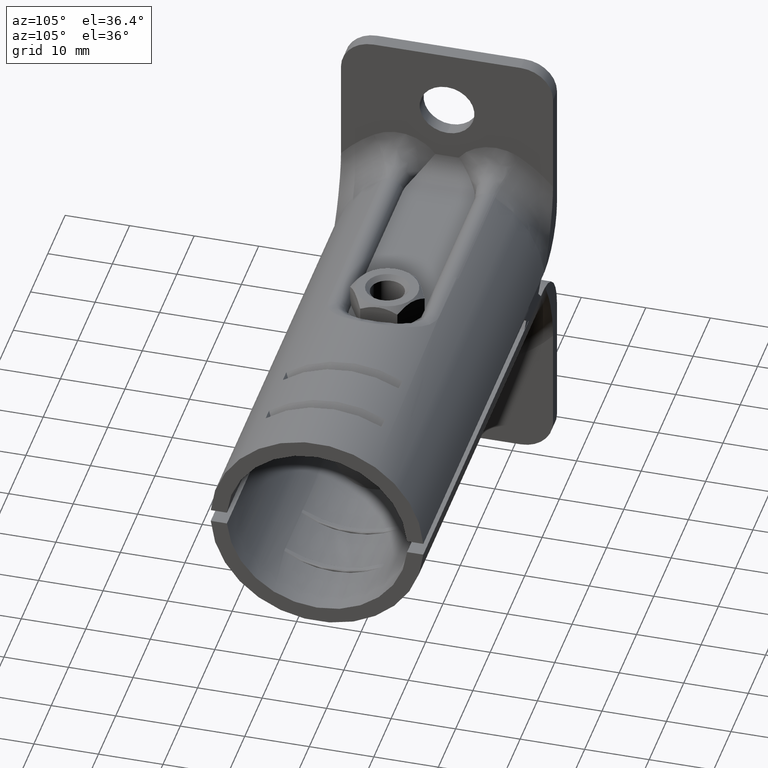
[diagram: clean part render]
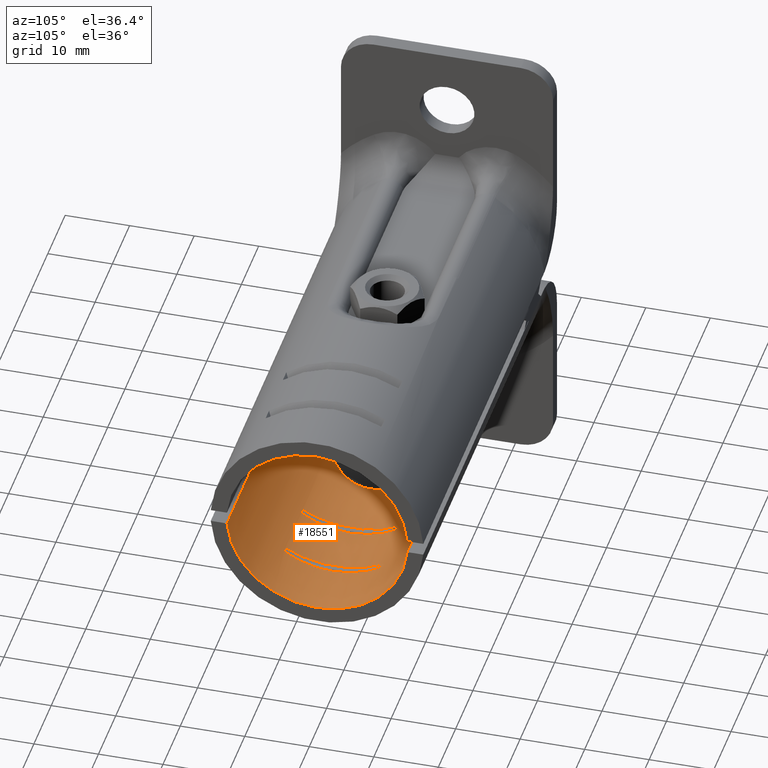
[diagram: same view with one face highlighted and labeled with its STEP entity id]
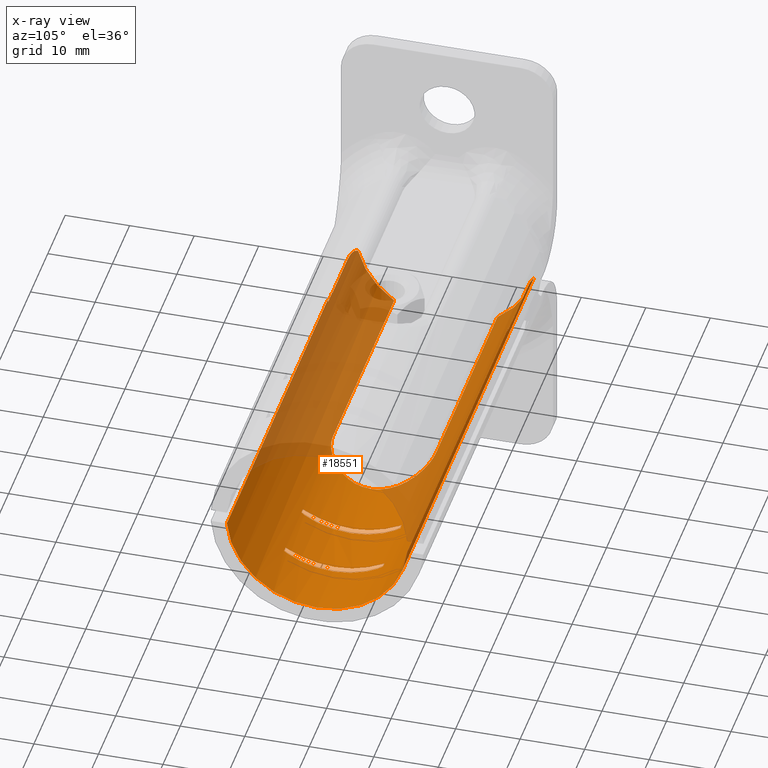
[diagram: x-ray of the same camera — body ghosted, the highlighted face saturated]
A machine part, auxiliary view. The second image highlights one B-rep face of the part: STEP entity #18551.
The next image is the same camera in x-ray: the body ghosted, the highlighted face saturated — about 45% of this face is hidden behind the body in this view.
In plain terms, the highlighted cylindrical surface (partial cylindrical patch) has radius 14 mm, axis along (-1, 0, 0).
Its self-contained STEP definition (entity closure, byte-faithful):
#15 = CARTESIAN_POINT ( 'NONE',  ( 55.03106823603999231, 7.264031933639000016, -11.96803752777000085 ) ) ;
#19 = CARTESIAN_POINT ( 'NONE',  ( 46.03342316308999926, 6.317153947814000858, -12.49383347540999978 ) ) ;
#49 = CARTESIAN_POINT ( 'NONE',  ( 31.83915444944231865, 5.958084479055755445, -12.66888242423948618 ) ) ;
#70 = CARTESIAN_POINT ( 'NONE',  ( 45.09913917434999320, 7.601680894973000591, -11.75647610290999978 ) ) ;
#80 = CARTESIAN_POINT ( 'NONE',  ( 26.49999999981000087, -8.000000170066000393, -11.48912515594000006 ) ) ;
#124 = CARTESIAN_POINT ( 'NONE',  ( 45.99176182276000446, 7.050308357746000176, -12.09525451263000129 ) ) ;
#128 = VERTEX_POINT ( 'NONE', #1625 ) ;
#142 = CIRCLE ( 'NONE', #10528, 14.00000000000000533 ) ;
#193 = EDGE_CURVE ( 'NONE', #17666, #7748, #12218, .T. ) ;
#208 = CARTESIAN_POINT ( 'NONE',  ( 45.99821520054999269, -6.974105001366000423, -12.13935362177999977 ) ) ;
#237 = CARTESIAN_POINT ( 'NONE',  ( 45.96036218387000361, 7.328183649429000468, -11.92889470777999961 ) ) ;
#262 = CARTESIAN_POINT ( 'NONE',  ( 26.95913068339074670, 8.000109683937013827, -11.48904886453082952 ) ) ;
#264 = VERTEX_POINT ( 'NONE', #10758 ) ;
#302 = EDGE_CURVE ( 'NONE', #7750, #6678, #19445, .T. ) ;
#312 = VERTEX_POINT ( 'NONE', #16795 ) ;
#336 = CARTESIAN_POINT ( 'NONE',  ( 54.95163825056999940, 5.579667780736000005, -12.84063221872999883 ) ) ;
#341 = CARTESIAN_POINT ( 'NONE',  ( 45.95441393468999536, 7.367862778317999961, -11.90442138404999994 ) ) ;
#371 = ORIENTED_EDGE ( 'NONE', *, *, #12124, .F. ) ;
#409 = EDGE_CURVE ( 'NONE', #2974, #16694, #823, .T. ) ;
#449 = ORIENTED_EDGE ( 'NONE', *, *, #9030, .F. ) ;
#480 = VECTOR ( 'NONE', #13926, 1000.000000000000000 ) ;
#538 = CARTESIAN_POINT ( 'NONE',  ( 54.97658950855999649, 6.567960579775999896, -12.36389664008000011 ) ) ;
#548 = EDGE_CURVE ( 'NONE', #10431, #2966, #19581, .T. ) ;
#646 = ORIENTED_EDGE ( 'NONE', *, *, #18552, .F. ) ;
#686 = DIRECTION ( 'NONE',  ( 0.000000000000000000, 0.3685519772691173701, -0.9296071428571447415 ) ) ;
#699 = CARTESIAN_POINT ( 'NONE',  ( 31.33842189891458574, -6.371173337891688604, -12.46618351064396713 ) ) ;
#755 = CARTESIAN_POINT ( 'NONE',  ( 54.94999999999999574, -5.159728490557999869, -13.01449967935000096 ) ) ;
#759 = ORIENTED_EDGE ( 'NONE', *, *, #3102, .F. ) ;
#770 = CARTESIAN_POINT ( 'NONE',  ( 4.500000000000000000, -13.91941090707999962, -1.500000000000000000 ) ) ;
#800 = CARTESIAN_POINT ( 'NONE',  ( -8.828984574286703690, -13.64908039280294361, -3.118080079643720026 ) ) ;
#804 = EDGE_CURVE ( 'NONE', #15095, #2904, #15102, .T. ) ;
#808 = CARTESIAN_POINT ( 'NONE',  ( 33.68227285063075982, -3.525970221013851713, -13.54914263352474002 ) ) ;
#823 = B_SPLINE_CURVE_WITH_KNOTS ( 'NONE', 3,
 ( #14899, #4676, #1491, #7802, #16237, #11321, #17771, #8124, #2822, #1594, #8229, #21599, #4880, #18097, #6493, #14680, #17992, #9566, #8021, #4771, #14464, #13252, #11415, #6181, #21391, #19736, #21185, #12831, #3151, #11521, #9768, #18205, #19524, #1289, #19955, #14792, #21294, #21493, #15329, #9974 ),
 .UNSPECIFIED., .F., .F.,
 ( 4, 1, 1, 1, 1, 1, 1, 1, 1, 1, 1, 1, 1, 1, 1, 1, 1, 1, 1, 1, 1, 1, 1, 1, 1, 1, 1, 1, 1, 1, 1, 1, 1, 1, 1, 1, 1, 4 ),
 ( 0.000000000000000000, 0.02702702702702999837, 0.05405405405404999780, 0.08108108108108000311, 0.1081081081081000095, 0.1351351351351000041, 0.1621621621622000020, 0.1891891891891999966, 0.2162162162161999912, 0.2432432432431999858, 0.2702702702702999837, 0.2972972972973000338, 0.3243243243242999729, 0.3513513513513999986, 0.3783783783783999932, 0.4054054054053999878, 0.4324324324323999824, 0.4594594594595000081, 0.4864864864865000027, 0.5135135135135000528, 0.5405405405404999364, 0.5675675675675999621, 0.5945945945946000677, 0.6216216216215999513, 0.6486486486485999459, 0.6756756756757000826, 0.7027027027026999662, 0.7297297297296999607, 0.7567567567567999864, 0.7837837837837999810, 0.8108108108107999756, 0.8378378378378000813, 0.8648648648648999959, 0.8918918918918999905, 0.9189189189188999851, 0.9459459459458999797, 0.9729729729730000054, 1.000000000000000000 ),
 .UNSPECIFIED. ) ;
#858 = CARTESIAN_POINT ( 'NONE',  ( 56.01973281387000014, 6.641386294161999437, -12.32451445136000068 ) ) ;
#894 = ORIENTED_EDGE ( 'NONE', *, *, #7557, .F. ) ;
#917 = CARTESIAN_POINT ( 'NONE',  ( 30.15976761793429262, -7.115562888274690856, -12.05777292524602373 ) ) ;
#941 = CARTESIAN_POINT ( 'NONE',  ( 7.182239539612999657, -13.93167672515000000, -1.381442588664000048 ) ) ;
#951 = CARTESIAN_POINT ( 'NONE',  ( 45.15000000000000568, 7.666191345772999988, -11.71449999999999925 ) ) ;
#958 = EDGE_CURVE ( 'NONE', #6678, #15685, #5738, .T. ) ;
#972 = CARTESIAN_POINT ( 'NONE',  ( 56.04883997401000073, -5.515587689110999392, -12.86813184530999976 ) ) ;
#1011 = CARTESIAN_POINT ( 'NONE',  ( -5.576665233481391759, -13.90204201457512312, -1.653699842388851149 ) ) ;
#1020 = CARTESIAN_POINT ( 'NONE',  ( 33.49926861822140012, -3.883472193676230422, -13.45277745542631820 ) ) ;
#1057 = CARTESIAN_POINT ( 'NONE',  ( 45.02809027062000524, 7.239994331389000060, -11.98259307951999908 ) ) ;
#1076 = CARTESIAN_POINT ( 'NONE',  ( 55.97917096433000239, 7.177741403266000297, -12.02005026549000100 ) ) ;
#1082 = CARTESIAN_POINT ( 'NONE',  ( 56.03395147521999320, -6.302570343720000245, -12.50128628953999943 ) ) ;
#1090 = CARTESIAN_POINT ( 'NONE',  ( -7.808041295310047758, 13.78142811269725065, -2.464338759892710673 ) ) ;
#1108 = AXIS2_PLACEMENT_3D ( 'NONE', #11330, #8133, #6187 ) ;
#1133 = CARTESIAN_POINT ( 'NONE',  ( 32.08392367658113642, -5.729130596945855025, -12.77409117722721099 ) ) ;
#1169 = CARTESIAN_POINT ( 'NONE',  ( 45.14336493277000528, 7.666191345772999988, -11.71449999999999925 ) ) ;
#1239 = CARTESIAN_POINT ( 'NONE',  ( 32.14817563616804819, 5.665708636019367361, -12.80233341374714584 ) ) ;
#1264 = CARTESIAN_POINT ( 'NONE',  ( 45.08073294030000255, -7.543054125579000235, -11.79417852067999917 ) ) ;
#1271 = CARTESIAN_POINT ( 'NONE',  ( 55.87789728947999635, 7.647712020730000226, -11.72657669295000105 ) ) ;
#1272 = CARTESIAN_POINT ( 'NONE',  ( 45.13191307973000477, 7.659807770826999374, -11.71867842988999975 ) ) ;
#1289 = CARTESIAN_POINT ( 'NONE',  ( 55.09486944469000491, -7.589649576611999571, -11.76424361681999997 ) ) ;
#1295 = CARTESIAN_POINT ( 'NONE',  ( 56.01815627483000526, -6.671942889242000518, -12.30805103549999835 ) ) ;
#1312 = CARTESIAN_POINT ( 'NONE',  ( 55.03514317939000478, 7.295308569756000061, -11.94900094948000024 ) ) ;
#1338 = CARTESIAN_POINT ( 'NONE',  ( 33.49513836566200098, 3.884233328563563070, -13.45090839033064434 ) ) ;
#1353 = CARTESIAN_POINT ( 'NONE',  ( 46.04032865867999647, -6.078363978684000024, -12.61187711421999857 ) ) ;
#1366 = CARTESIAN_POINT ( 'NONE',  ( 44.99085945528999986, -6.823347724363999944, -12.22472446141999924 ) ) ;
#1389 = CARTESIAN_POINT ( 'NONE',  ( 45.92673121113000434, -7.513143754628000437, -11.81324987717000141 ) ) ;
#1409 = CARTESIAN_POINT ( 'NONE',  ( 46.04999999999999716, 5.159727681767999563, -13.01449999999999996 ) ) ;
#1410 = CARTESIAN_POINT ( 'NONE',  ( 55.02553804904000145, 7.218557645590999883, -11.99551911810000071 ) ) ;
#1433 = B_SPLINE_CURVE_WITH_KNOTS ( 'NONE', 3,
 ( #17362, #800, #2523, #12220, #4072, #21007, #20898, #15950, #5681, #17477, #17149, #10575, #1011, #2408, #13849, #18803 ),
 .UNSPECIFIED., .F., .F.,
 ( 4, 2, 2, 2, 2, 2, 2, 4 ),
 ( 0.000000000000000000, 0.1249999999999985567, 0.1874999999999983347, 0.2499999999999981126, 0.4999999999999986677, 0.6249999999999988898, 0.7499999999999991118, 1.000000000000000000 ),
 .UNSPECIFIED. ) ;
#1442 = CARTESIAN_POINT ( 'NONE',  ( 6.800796950949000497, 13.96424004377000117, -1.000000000000000000 ) ) ;
#1444 = CARTESIAN_POINT ( 'NONE',  ( 31.23849246216378361, 6.447334943617293312, -12.42732584421583475 ) ) ;
#1457 = CARTESIAN_POINT ( 'NONE',  ( 46.03728194626999937, -6.194479338786999634, -12.55522273192000071 ) ) ;
#1491 = CARTESIAN_POINT ( 'NONE',  ( 54.95035663406999760, -5.390084577559000500, -12.92145922327000029 ) ) ;
#1513 = CARTESIAN_POINT ( 'NONE',  ( 55.01257088515999527, 7.096188646176999626, -12.06832556545000124 ) ) ;
#1542 = CARTESIAN_POINT ( 'NONE',  ( 32.15722772578212840, 5.656672934846889156, -12.80632823950185184 ) ) ;
#1594 = CARTESIAN_POINT ( 'NONE',  ( 54.96959114431999893, -6.402597573458000291, -12.45035318927000034 ) ) ;
#1618 = CARTESIAN_POINT ( 'NONE',  ( 46.04527913601999956, 5.826593882677999936, -12.73018216971000172 ) ) ;
#1625 = CARTESIAN_POINT ( 'NONE',  ( 6.800796950949000497, 13.96424004377000117, -1.000000000000000000 ) ) ;
#1649 = CARTESIAN_POINT ( 'NONE',  ( 31.36796975602389281, 6.351038747075892665, -12.47701830065424389 ) ) ;
#1664 = CARTESIAN_POINT ( 'NONE',  ( 45.03292130847000152, 7.278480662360000686, -11.95925705149999985 ) ) ;
#1721 = CARTESIAN_POINT ( 'NONE',  ( 46.01631852727999927, 6.704865906480999449, -12.29010171736999979 ) ) ;
#1727 = EDGE_CURVE ( 'NONE', #13337, #20451, #1997, .T. ) ;
#1751 = CARTESIAN_POINT ( 'NONE',  ( 30.54583809108155634, 6.909329663756567541, -12.17803662757185279 ) ) ;
#1796 = CARTESIAN_POINT ( 'NONE',  ( 45.98119738502999354, -7.158694680261999288, -12.03139389782000102 ) ) ;
#1849 = CARTESIAN_POINT ( 'NONE',  ( 7.055166540396000663, 13.94427707876000078, -1.254369589447000166 ) ) ;
#1850 = CARTESIAN_POINT ( 'NONE',  ( 29.79773834282942602, 7.290035898743566278, -11.95284510406697187 ) ) ;
#1916 = CARTESIAN_POINT ( 'NONE',  ( 54.94999999999999574, 0.000000000000000000, 0.000000000000000000 ) ) ;
#1934 = CARTESIAN_POINT ( 'NONE',  ( 45.97273469759999642, 7.233945095960000238, -11.98629697628999935 ) ) ;
#1958 = CARTESIAN_POINT ( 'NONE',  ( 30.82595234945904750, 6.729574637224056133, -12.27651388562075319 ) ) ;
#1997 = B_SPLINE_CURVE_WITH_KNOTS ( 'NONE', 3,
 ( #14455, #16229, #6171, #17414, #14116, #16119, #12821, #14568, #10743, #21287, #6275, #5847, #9110, #15789, #10862, #858, #7563, #7465, #20841, #12484, #9226, #15899, #20948, #1076, #3031, #6158, #11195, #13017, #14444, #7888, #16447, #9753, #16218, #6370, #21166, #5942, #14554, #12808, #1271, #18080, #9325, #6263 ),
 .UNSPECIFIED., .F., .F.,
 ( 4, 1, 1, 1, 1, 1, 1, 1, 1, 1, 1, 1, 1, 1, 1, 1, 1, 1, 1, 1, 1, 1, 1, 1, 1, 1, 1, 1, 1, 1, 1, 1, 1, 1, 1, 1, 1, 1, 1, 4 ),
 ( 0.000000000000000000, 0.02564102564102999776, 0.05128205128204999658, 0.07692307692307999434, 0.1025641025641000070, 0.1282051282050999941, 0.1538461538461999845, 0.1794871794871999993, 0.2051282051281999863, 0.2307692307692000011, 0.2564102564103000192, 0.2820512820513000340, 0.3076923076922999933, 0.3333333333333000081, 0.3589743589743999985, 0.3846153846154000133, 0.4102564102564000281, 0.4358974358973999874, 0.4615384615385000333, 0.4871794871795000481, 0.5128205128205000074, 0.5384615384614999112, 0.5641025641026000681, 0.5897435897435999719, 0.6153846153845999867, 0.6410256410256000015, 0.6666666666667000474, 0.6923076923076999512, 0.7179487179486999660, 0.7435897435896999808, 0.7692307692308000266, 0.7948717948717999304, 0.8205128205128000562, 0.8461538461537999600, 0.8717948717949000059, 0.8974358974359000207, 0.9230769230769000355, 0.9487179487178999393, 0.9743589743590000962, 1.000000000000000000 ),
 .UNSPECIFIED. ) ;
#2045 = CARTESIAN_POINT ( 'NONE',  ( 45.87789732521000019, 7.647711973946999642, -11.72657672349000002 ) ) ;
#2067 = CARTESIAN_POINT ( 'NONE',  ( -9.000000000000000000, 0.000000000000000000, 0.000000000000000000 ) ) ;
#2075 = CIRCLE ( 'NONE', #12526, 14.00000000000000533 ) ;
#2079 = DIRECTION ( 'NONE',  ( -1.000000000000000000, 0.000000000000000000, 0.000000000000000000 ) ) ;
#2103 = EDGE_LOOP ( 'NONE', ( #3071, #2569, #17511, #5665, #9598, #14321, #4522, #13434 ) ) ;
#2161 = CARTESIAN_POINT ( 'NONE',  ( -4.903575752739336657, 13.91389959365984907, -1.550357244479916075 ) ) ;
#2177 = VERTEX_POINT ( 'NONE', #19235 ) ;
#2192 = CIRCLE ( 'NONE', #11936, 14.00000000000000355 ) ;
#2309 = CARTESIAN_POINT ( 'NONE',  ( 31.18053768459815700, -6.488382689081356069, -12.40570284455176164 ) ) ;
#2337 = CARTESIAN_POINT ( 'NONE',  ( 6.800796950949000497, -13.96424004377000117, -1.000000000000000000 ) ) ;
#2399 = EDGE_CURVE ( 'NONE', #6763, #128, #8209, .T. ) ;
#2408 = CARTESIAN_POINT ( 'NONE',  ( -4.905004360045105649, -13.91542687400262501, -1.538465563215606569 ) ) ;
#2415 = CARTESIAN_POINT ( 'NONE',  ( 29.36155694079149470, -7.470724094504076263, -11.84011428756716455 ) ) ;
#2483 = VECTOR ( 'NONE', #2079, 1000.000000000000000 ) ;
#2522 = DIRECTION ( 'NONE',  ( 0.000000000000000000, 0.9974457174120674452, -0.07142857142856773311 ) ) ;
#2523 = CARTESIAN_POINT ( 'NONE',  ( -8.652380815276325521, -13.67796400497944731, -2.988147603782716377 ) ) ;
#2531 = CARTESIAN_POINT ( 'NONE',  ( 32.14233819521555802, -5.671516753437829905, -12.79976182477872371 ) ) ;
#2543 = VECTOR ( 'NONE', #6767, 1000.000000000000000 ) ;
#2569 = ORIENTED_EDGE ( 'NONE', *, *, #15382, .F. ) ;
#2602 = CARTESIAN_POINT ( 'NONE',  ( 55.98119738537999979, -7.158694676898000431, -12.03139389982000118 ) ) ;
#2608 = CARTESIAN_POINT ( 'NONE',  ( -4.227108928251269937, 13.91941090707511108, -1.499999999999484634 ) ) ;
#2652 = CARTESIAN_POINT ( 'NONE',  ( 32.13726096992731840, -5.676564624696402994, -12.79752437711763591 ) ) ;
#2666 = DIRECTION ( 'NONE',  ( -1.000000000000000000, 0.000000000000000000, 0.000000000000000000 ) ) ;
#2669 = CARTESIAN_POINT ( 'NONE',  ( 46.04999999999999716, -5.159727746438000473, -13.01449995610999899 ) ) ;
#2681 = CARTESIAN_POINT ( 'NONE',  ( 45.09486944393000130, -7.589649574444999658, -11.76424361822000009 ) ) ;
#2723 = CARTESIAN_POINT ( 'NONE',  ( 65.50000000000000000, 0.000000000000000000, 0.000000000000000000 ) ) ;
#2765 = CARTESIAN_POINT ( 'NONE',  ( 32.37664959388304453, -5.438229169228480764, -12.90306686262191427 ) ) ;
#2791 = CARTESIAN_POINT ( 'NONE',  ( 45.01277105906999765, -7.098585931430999807, -12.06693861940999923 ) ) ;
#2822 = CARTESIAN_POINT ( 'NONE',  ( 54.96575350691999517, -6.294038501588999246, -12.50561610313000038 ) ) ;
#2829 = CARTESIAN_POINT ( 'NONE',  ( 55.99821520092999805, -6.974104996730999595, -12.13935362443999999 ) ) ;
#2836 = FACE_BOUND ( 'NONE', #7677, .T. ) ;
#2883 = CARTESIAN_POINT ( 'NONE',  ( 34.48875170656722844, 0.4895520722120918489, -13.99351544402133918 ) ) ;
#2897 = CARTESIAN_POINT ( 'NONE',  ( 46.04999999999999716, -5.159727746438000473, -13.01449995610999899 ) ) ;
#2904 = VERTEX_POINT ( 'NONE', #13493 ) ;
#2909 = CARTESIAN_POINT ( 'NONE',  ( 45.01717711612000272, -7.142800101047000361, -12.04081555240999890 ) ) ;
#2921 = CARTESIAN_POINT ( 'NONE',  ( 45.03785290916000150, 7.315126847080000161, -11.93688116347999895 ) ) ;
#2944 = CARTESIAN_POINT ( 'NONE',  ( 56.00870094014000244, -6.830310061722999926, -12.22085803956000127 ) ) ;
#2964 = CARTESIAN_POINT ( 'NONE',  ( 46.04999999999999716, 5.228780828677000336, -12.98712319462000053 ) ) ;
#2966 = VERTEX_POINT ( 'NONE', #17102 ) ;
#2974 = VERTEX_POINT ( 'NONE', #755 ) ;
#2995 = CARTESIAN_POINT ( 'NONE',  ( 31.58278690005724698, 6.177794171491729713, -12.56309381662848779 ) ) ;
#3022 = CARTESIAN_POINT ( 'NONE',  ( 45.06699995410000525, -7.485587084602999930, -11.83074205393999989 ) ) ;
#3031 = CARTESIAN_POINT ( 'NONE',  ( 55.97273463885999689, 7.233945585149999857, -11.98629668096999978 ) ) ;
#3043 = CARTESIAN_POINT ( 'NONE',  ( 45.91689413933999475, -7.551479015956999774, -11.78877912117000015 ) ) ;
#3066 = CARTESIAN_POINT ( 'NONE',  ( 55.04975008432000294, 7.393551891831999789, -11.88847325859999948 ) ) ;
#3071 = ORIENTED_EDGE ( 'NONE', *, *, #5457, .F. ) ;
#3101 = CARTESIAN_POINT ( 'NONE',  ( 34.49999766966740111, -0.4869771691115981627, -13.99999383591243074 ) ) ;
#3102 = EDGE_CURVE ( 'NONE', #11680, #7750, #4555, .T. ) ;
#3114 = CARTESIAN_POINT ( 'NONE',  ( 46.04541893988000822, -5.818480037568999563, -12.73393847793999889 ) ) ;
#3124 = VERTEX_POINT ( 'NONE', #14866 ) ;
#3127 = LINE ( 'NONE', #8316, #20254 ) ;
#3149 = CARTESIAN_POINT ( 'NONE',  ( 45.86643508427999905, -7.661046910272000687, -11.71786760166000008 ) ) ;
#3151 = CARTESIAN_POINT ( 'NONE',  ( 55.06022964239000572, -7.452345754312998949, -11.85171285710999989 ) ) ;
#3174 = CARTESIAN_POINT ( 'NONE',  ( 55.01750281630000217, 7.145579577229999479, -12.03913978974000010 ) ) ;
#3206 = CARTESIAN_POINT ( 'NONE',  ( 34.50000112144019226, 0.2433136866025074063, -14.00000308131628302 ) ) ;
#3266 = DIRECTION ( 'NONE',  ( -1.000000000000000000, 0.000000000000000000, 0.000000000000000000 ) ) ;
#3279 = CARTESIAN_POINT ( 'NONE',  ( 55.11951942266999538, 7.644156746228999211, -11.72889671987999982 ) ) ;
#3308 = CARTESIAN_POINT ( 'NONE',  ( 30.89949487088013313, 6.681845653223533965, -12.30256124229370407 ) ) ;
#3324 = CARTESIAN_POINT ( 'NONE',  ( 44.98580914790000662, 6.742293067601999645, -12.26964064113999875 ) ) ;
#3370 = EDGE_CURVE ( 'NONE', #21468, #8710, #142, .T. ) ;
#3419 = CARTESIAN_POINT ( 'NONE',  ( 7.182239539612999657, 13.93167672515000000, -1.381442588664000048 ) ) ;
#3421 = CARTESIAN_POINT ( 'NONE',  ( 29.37582695773578223, 7.465241767196666878, -11.84357033781206781 ) ) ;
#3433 = DIRECTION ( 'NONE',  ( 1.000000000000000000, 4.645207711458000400E-09, 3.745803717294000280E-09 ) ) ;
#3438 = CARTESIAN_POINT ( 'NONE',  ( 44.98120443304000560, 6.660110818205000172, -12.31447045296999931 ) ) ;
#3504 = CARTESIAN_POINT ( 'NONE',  ( 45.91793745530999615, 7.547932686023999693, -11.79105587455000048 ) ) ;
#3531 = CARTESIAN_POINT ( 'NONE',  ( 28.20041114394307513, 7.817451241805068562, -11.61431198472753223 ) ) ;
#3559 = VERTEX_POINT ( 'NONE', #8590 ) ;
#3617 = DIRECTION ( 'NONE',  ( -1.000000000000000000, 0.000000000000000000, 0.000000000000000000 ) ) ;
#3715 = CARTESIAN_POINT ( 'NONE',  ( 55.93672215734000019, -7.467490583285999683, -11.84216525042999990 ) ) ;
#3734 = CARTESIAN_POINT ( 'NONE',  ( 29.39291404159968835, 7.458633280284526101, -11.84773455306731904 ) ) ;
#3740 = ORIENTED_EDGE ( 'NONE', *, *, #302, .F. ) ;
#3766 = VERTEX_POINT ( 'NONE', #770 ) ;
#3847 = CARTESIAN_POINT ( 'NONE',  ( 4.500000000000000000, 13.93167672515000000, -1.381442588664000048 ) ) ;
#3926 = CARTESIAN_POINT ( 'NONE',  ( -6.246237083581561933, 13.88355276098899616, -1.808421307711551407 ) ) ;
#3932 = CARTESIAN_POINT ( 'NONE',  ( 65.50000000000000000, 13.96424004377000117, -1.000000000000000000 ) ) ;
#3955 = AXIS2_PLACEMENT_3D ( 'NONE', #6636, #15163, #16389 ) ;
#4061 = CARTESIAN_POINT ( 'NONE',  ( 55.84999999999999432, -7.666191345772999988, -11.71449999999999925 ) ) ;
#4062 = CARTESIAN_POINT ( 'NONE',  ( 4.500000000000000000, -13.91941090707999962, -1.500000000000000000 ) ) ;
#4068 = DIRECTION ( 'NONE',  ( -1.000000000000000000, 0.000000000000000000, 0.000000000000000000 ) ) ;
#4072 = CARTESIAN_POINT ( 'NONE',  ( -8.286599547337196725, -13.72849065145018521, -2.744450481005584308 ) ) ;
#4078 = CARTESIAN_POINT ( 'NONE',  ( -4.000000000000000000, 13.91941090707999962, -1.500000000000000000 ) ) ;
#4079 = CARTESIAN_POINT ( 'NONE',  ( 33.18583863071431495, -4.393366203816524873, -13.29278840868033562 ) ) ;
#4142 = CARTESIAN_POINT ( 'NONE',  ( 56.00357239558999822, -6.904141673379999844, -12.17929003657999942 ) ) ;
#4147 = B_SPLINE_CURVE_WITH_KNOTS ( 'NONE', 3,
 ( #17557, #2608, #14242, #20970, #2161, #8798, #15481, #20532, #3926, #10539, #7267, #8898, #15588, #13917, #1090, #9574, #19298, #16360, #12730 ),
 .UNSPECIFIED., .F., .F.,
 ( 4, 2, 2, 2, 2, 2, 1, 2, 2, 4 ),
 ( 0.000000000000000000, 0.1249999999999996114, 0.1874999999999996392, 0.2499999999999996669, 0.5000000000000002220, 0.6250000000000004441, 0.6875000000000004441, 0.7187500000000003331, 0.7500000000000002220, 1.000000000000000000 ),
 .UNSPECIFIED. ) ;
#4194 = CARTESIAN_POINT ( 'NONE',  ( 31.66039678285222791, -6.116128255511379841, -12.59396779439504854 ) ) ;
#4258 = CARTESIAN_POINT ( 'NONE',  ( 56.04032865880000003, -6.078363973493000394, -12.61187711671999878 ) ) ;
#4306 = CARTESIAN_POINT ( 'NONE',  ( 30.90637888415944445, -6.677968404134436042, -12.30478626929395602 ) ) ;
#4309 = EDGE_CURVE ( 'NONE', #4967, #20996, #2192, .T. ) ;
#4379 = CARTESIAN_POINT ( 'NONE',  ( 44.94999999999999574, 5.159727681767999563, -13.01449999999999996 ) ) ;
#4409 = CARTESIAN_POINT ( 'NONE',  ( 33.89777806292559603, -3.045490504058438574, -13.66477151727959871 ) ) ;
#4442 = CARTESIAN_POINT ( 'NONE',  ( 45.05366820359000712, -7.416730327242000875, -11.87403597958000034 ) ) ;
#4452 = CARTESIAN_POINT ( 'NONE',  ( 45.02284345345000105, 7.195045793334999829, -12.00963750727999901 ) ) ;
#4471 = EDGE_CURVE ( 'NONE', #312, #128, #5548, .T. ) ;
#4472 = CARTESIAN_POINT ( 'NONE',  ( 56.02653416343999737, -6.498162859790000745, -12.40070395060999964 ) ) ;
#4517 = CARTESIAN_POINT ( 'NONE',  ( 30.83234169869276187, 6.725463358948449155, -12.27876420925339040 ) ) ;
#4522 = ORIENTED_EDGE ( 'NONE', *, *, #409, .F. ) ;
#4544 = CARTESIAN_POINT ( 'NONE',  ( 45.03608150494999762, -7.302620063338999934, -11.94455602342999967 ) ) ;
#4555 = B_SPLINE_CURVE_WITH_KNOTS ( 'NONE', 3,
 ( #6704, #13360, #3149, #16769, #21389, #14572, #21292, #12938, #4675, #3043, #16346, #1389, #8019, #6389, #19734, #4769, #11413, #18095, #9766, #15124, #6809, #1796, #13465, #8446, #208, #16039, #18274, #6243, #19806, #7981, #17956, #14752, #4955, #1457, #1353, #4843, #3114, #13215, #9734, #11484, #14638, #2897 ),
 .UNSPECIFIED., .F., .F.,
 ( 4, 1, 1, 1, 1, 1, 1, 1, 1, 1, 1, 1, 1, 1, 1, 1, 1, 1, 1, 1, 1, 1, 1, 1, 1, 1, 1, 1, 1, 1, 1, 1, 1, 1, 1, 1, 1, 1, 1, 4 ),
 ( 0.000000000000000000, 0.02564102564102999776, 0.05128205128204999658, 0.07692307692307999434, 0.1025641025641000070, 0.1282051282050999941, 0.1538461538461999845, 0.1794871794871999993, 0.2051282051281999863, 0.2307692307692000011, 0.2564102564103000192, 0.2820512820513000340, 0.3076923076922999933, 0.3333333333333000081, 0.3589743589743999985, 0.3846153846154000133, 0.4102564102564000281, 0.4358974358973999874, 0.4615384615385000333, 0.4871794871795000481, 0.5128205128205000074, 0.5384615384614999112, 0.5641025641026000681, 0.5897435897435999719, 0.6153846153845999867, 0.6410256410256000015, 0.6666666666667000474, 0.6923076923076999512, 0.7179487179486999660, 0.7435897435896999808, 0.7692307692308000266, 0.7948717948717999304, 0.8205128205128000562, 0.8461538461537999600, 0.8717948717949000059, 0.8974358974359000207, 0.9230769230769000355, 0.9487179487178999393, 0.9743589743590000962, 1.000000000000000000 ),
 .UNSPECIFIED. ) ;
#4557 = CARTESIAN_POINT ( 'NONE',  ( 45.05496642546000174, 7.423897289140001021, -11.86954895686999834 ) ) ;
#4576 = CARTESIAN_POINT ( 'NONE',  ( -9.000000000000000000, -8.000000000000000000, -11.48912529308000074 ) ) ;
#4597 = CARTESIAN_POINT ( 'NONE',  ( 7.182239539612999657, 13.93167672515000000, -1.381442588664000048 ) ) ;
#4625 = CARTESIAN_POINT ( 'NONE',  ( 31.63602229485124795, 6.133852279596453627, -12.58466790381090306 ) ) ;
#4649 = CARTESIAN_POINT ( 'NONE',  ( 45.04153612861000511, -7.341160061267000714, -11.92090815085999900 ) ) ;
#4675 = CARTESIAN_POINT ( 'NONE',  ( 45.91186290821000426, -7.568723127331999478, -11.77771465780000071 ) ) ;
#4676 = CARTESIAN_POINT ( 'NONE',  ( 54.95000000099000204, -5.239758017245999433, -12.98277118102000038 ) ) ;
#4700 = CARTESIAN_POINT ( 'NONE',  ( 55.02679840732999850, 7.229242449857999908, -11.98908273691999860 ) ) ;
#4730 = DIRECTION ( 'NONE',  ( -1.000000000000000000, 0.000000000000000000, 0.000000000000000000 ) ) ;
#4732 = CARTESIAN_POINT ( 'NONE',  ( 32.19494267790084052, 5.618755261044458216, -12.82301852410280674 ) ) ;
#4737 = ORIENTED_EDGE ( 'NONE', *, *, #3370, .F. ) ;
#4769 = CARTESIAN_POINT ( 'NONE',  ( 45.94717586099999096, -7.411726335897999896, -11.87715259622000019 ) ) ;
#4771 = CARTESIAN_POINT ( 'NONE',  ( 55.01277106081000312, -7.098585949408000140, -12.06693860883000013 ) ) ;
#4794 = CARTESIAN_POINT ( 'NONE',  ( 55.01952233851999807, 7.164751765038000819, -12.02773760680999970 ) ) ;
#4827 = CARTESIAN_POINT ( 'NONE',  ( 34.35060183961455493, -1.540049365473497689, -13.91517220442906044 ) ) ;
#4835 = ORIENTED_EDGE ( 'NONE', *, *, #18936, .F. ) ;
#4843 = CARTESIAN_POINT ( 'NONE',  ( 46.04305577224999979, -5.953333872507999835, -12.67141138128000044 ) ) ;
#4880 = CARTESIAN_POINT ( 'NONE',  ( 54.98211370968000011, -6.676859106565999902, -12.30537697615000070 ) ) ;
#4938 = CARTESIAN_POINT ( 'NONE',  ( 31.01132670463255536, 6.607063781689793025, -12.34291508426525041 ) ) ;
#4948 = LINE ( 'NONE', #20021, #15098 ) ;
#4955 = CARTESIAN_POINT ( 'NONE',  ( 46.03395147506000029, -6.302570348710999859, -12.50128628701999922 ) ) ;
#4967 = VERTEX_POINT ( 'NONE', #19396 ) ;
#4984 = CIRCLE ( 'NONE', #18237, 14.00000000000000533 ) ;
#5014 = CARTESIAN_POINT ( 'NONE',  ( 46.04312959756000367, 5.948509682312000280, -12.67361744683000069 ) ) ;
#5039 = CARTESIAN_POINT ( 'NONE',  ( 30.82696863848731184, 6.728920278593352400, -12.27687197938176844 ) ) ;
#5068 = CARTESIAN_POINT ( 'NONE',  ( 27.79559148434521987, -7.894388228146304698, -11.56196818286754890 ) ) ;
#5098 = DIRECTION ( 'NONE',  ( 1.000000000000000000, 0.000000000000000000, 0.000000000000000000 ) ) ;
#5166 = DIRECTION ( 'NONE',  ( 1.000000000000000000, 0.000000000000000000, 0.000000000000000000 ) ) ;
#5179 = EDGE_CURVE ( 'NONE', #15685, #2177, #13296, .T. ) ;
#5265 = CARTESIAN_POINT ( 'NONE',  ( 44.95031326678999761, 5.379805384886999775, -12.92573681531999874 ) ) ;
#5322 = CARTESIAN_POINT ( 'NONE',  ( 45.94279138478999869, 7.436248827386999771, -11.86181511999000016 ) ) ;
#5371 = CARTESIAN_POINT ( 'NONE',  ( 44.94999999999999574, 5.235012502120000910, -12.98465258584000104 ) ) ;
#5431 = CARTESIAN_POINT ( 'NONE',  ( 46.01973283550999838, 6.641385875200000122, -12.32451467709999982 ) ) ;
#5457 = EDGE_CURVE ( 'NONE', #7969, #12208, #11053, .T. ) ;
#5536 = CARTESIAN_POINT ( 'NONE',  ( 55.88757515857000868, -7.631477907757999724, -11.73714861176999946 ) ) ;
#5548 = LINE ( 'NONE', #3932, #480 ) ;
#5665 = ORIENTED_EDGE ( 'NONE', *, *, #15620, .F. ) ;
#5681 = CARTESIAN_POINT ( 'NONE',  ( -7.102177127966147197, -13.84062832218169348, -2.112016945022624714 ) ) ;
#5688 = CARTESIAN_POINT ( 'NONE',  ( 30.28681747160759130, -7.048937615096806830, -12.09682226991980691 ) ) ;
#5738 = B_SPLINE_CURVE_WITH_KNOTS ( 'NONE', 3,
 ( #17911, #2964, #11440, #8261, #13273, #1618, #5014, #18658, #6940, #15044, #19, #18545, #13598, #8576, #20419, #5431, #1721, #15151, #10429, #10324, #12069, #124, #18437, #14927, #1934, #11754, #237, #341, #6623, #5322, #6732, #8473, #16900, #3504, #15250, #13386, #20309, #19980, #2045, #8682, #6836, #20206 ),
 .UNSPECIFIED., .F., .F.,
 ( 4, 1, 1, 1, 1, 1, 1, 1, 1, 1, 1, 1, 1, 1, 1, 1, 1, 1, 1, 1, 1, 1, 1, 1, 1, 1, 1, 1, 1, 1, 1, 1, 1, 1, 1, 1, 1, 1, 1, 4 ),
 ( 0.000000000000000000, 0.02564102564102999776, 0.05128205128204999658, 0.07692307692307999434, 0.1025641025641000070, 0.1282051282050999941, 0.1538461538461999845, 0.1794871794871999993, 0.2051282051281999863, 0.2307692307692000011, 0.2564102564103000192, 0.2820512820513000340, 0.3076923076922999933, 0.3333333333333000081, 0.3589743589743999985, 0.3846153846154000133, 0.4102564102564000281, 0.4358974358973999874, 0.4615384615385000333, 0.4871794871795000481, 0.5128205128205000074, 0.5384615384614999112, 0.5641025641026000681, 0.5897435897435999719, 0.6153846153845999867, 0.6410256410256000015, 0.6666666666667000474, 0.6923076923076999512, 0.7179487179486999660, 0.7435897435896999808, 0.7692307692308000266, 0.7948717948717999304, 0.8205128205128000562, 0.8461538461537999600, 0.8717948717949000059, 0.8974358974359000207, 0.9230769230769000355, 0.9487179487178999393, 0.9743589743590000962, 1.000000000000000000 ),
 .UNSPECIFIED. ) ;
#5743 = EDGE_CURVE ( 'NONE', #3124, #16324, #1433, .T. ) ;
#5757 = EDGE_CURVE ( 'NONE', #15095, #7333, #17253, .T. ) ;
#5758 = CARTESIAN_POINT ( 'NONE',  ( 55.94717586168999901, -7.411726331904000098, -11.87715259872000040 ) ) ;
#5805 = CARTESIAN_POINT ( 'NONE',  ( 33.93176374883036317, -2.961363435383088216, -13.68322064200397747 ) ) ;
#5811 = VERTEX_POINT ( 'NONE', #12541 ) ;
#5847 = CARTESIAN_POINT ( 'NONE',  ( 56.03088857387000132, 6.388452522490999819, -12.45751389427000078 ) ) ;
#5910 = CARTESIAN_POINT ( 'NONE',  ( 31.47382443499118665, -6.265875504757362435, -12.51938821545289571 ) ) ;
#5935 = CARTESIAN_POINT ( 'NONE',  ( 44.96959114192999607, -6.402597510760999810, -12.45035322154000035 ) ) ;
#5942 = CARTESIAN_POINT ( 'NONE',  ( 55.90372829145000111, 7.593641114834000838, -11.76166746160000010 ) ) ;
#5943 = CARTESIAN_POINT ( 'NONE',  ( 44.95372452198999724, 5.763241916602000359, -12.75920928516999986 ) ) ;
#5965 = CARTESIAN_POINT ( 'NONE',  ( 55.98697614792000365, -7.101579924681000300, -12.06520392474000047 ) ) ;
#6017 = CARTESIAN_POINT ( 'NONE',  ( 30.80428784362034023, -6.743450885990434962, -12.26890628702551211 ) ) ;
#6042 = ORIENTED_EDGE ( 'NONE', *, *, #14508, .T. ) ;
#6046 = CARTESIAN_POINT ( 'NONE',  ( 44.99964765925999899, -6.946623416969000431, -12.15507469936999918 ) ) ;
#6125 = CARTESIAN_POINT ( 'NONE',  ( 31.43925855947915693, -6.293174599536885516, -12.50569126717601520 ) ) ;
#6158 = CARTESIAN_POINT ( 'NONE',  ( 55.96646195011999936, 7.283821463009000574, -11.95604239995999940 ) ) ;
#6171 = CARTESIAN_POINT ( 'NONE',  ( 56.04973585143000037, 5.359701404606999731, -12.93394640114000005 ) ) ;
#6181 = CARTESIAN_POINT ( 'NONE',  ( 55.03102597355999848, -7.264102249897999464, -11.96801994890999943 ) ) ;
#6187 = DIRECTION ( 'NONE',  ( 0.000000000000000000, -0.9725963620733070192, -0.2325001429715014833 ) ) ;
#6229 = CARTESIAN_POINT ( 'NONE',  ( 34.05346525765154553, 2.636208148259018280, -13.74967777278017600 ) ) ;
#6243 = CARTESIAN_POINT ( 'NONE',  ( 46.01357066393999418, -6.752823150881000380, -12.26385354108999870 ) ) ;
#6263 = CARTESIAN_POINT ( 'NONE',  ( 55.84999999999999432, 7.666191345772999988, -11.71449999999999925 ) ) ;
#6266 = CARTESIAN_POINT ( 'NONE',  ( 45.04975008432000294, 7.393551891831999789, -11.88847325859999948 ) ) ;
#6275 = CARTESIAN_POINT ( 'NONE',  ( 56.03342314797000512, 6.317154394968000020, -12.49383324928999883 ) ) ;
#6292 = CYLINDRICAL_SURFACE ( 'NONE', #19930, 14.00000000000000000 ) ;
#6338 = CARTESIAN_POINT ( 'NONE',  ( 34.02067735214134814, 2.728992668546033507, -13.73169337094769382 ) ) ;
#6342 = ORIENTED_EDGE ( 'NONE', *, *, #804, .F. ) ;
#6370 = CARTESIAN_POINT ( 'NONE',  ( 55.91793740592999740, 7.547932865775000444, -11.79105575946000073 ) ) ;
#6389 = CARTESIAN_POINT ( 'NONE',  ( 45.93672215661000280, -7.467490586877999270, -11.84216524816999971 ) ) ;
#6416 = CARTESIAN_POINT ( 'NONE',  ( 55.02284345345000105, 7.195045793334999829, -12.00963750727999901 ) ) ;
#6448 = CARTESIAN_POINT ( 'NONE',  ( 33.74339618034855448, 3.406541380275592168, -13.58133224744507928 ) ) ;
#6493 = CARTESIAN_POINT ( 'NONE',  ( 54.99085945747999915, -6.823347757806000224, -12.22472444273999770 ) ) ;
#6515 = CARTESIAN_POINT ( 'NONE',  ( 54.99032767965999824, 6.815220195586000784, -12.22926084849999917 ) ) ;
#6547 = CARTESIAN_POINT ( 'NONE',  ( 33.39043885163409442, 4.065392294217089919, -13.39686803569042794 ) ) ;
#6574 = CARTESIAN_POINT ( 'NONE',  ( 27.43755045497128719, -7.945920757548033286, -11.52686104696756786 ) ) ;
#6621 = CARTESIAN_POINT ( 'NONE',  ( 55.00633901302000339, 7.028010403294999264, -12.10816941195999874 ) ) ;
#6623 = CARTESIAN_POINT ( 'NONE',  ( 45.94857963113000210, 7.403627058169000463, -11.88220698075000215 ) ) ;
#6636 = CARTESIAN_POINT ( 'NONE',  ( 4.500000000000000000, 0.000000000000000000, 0.000000000000000000 ) ) ;
#6650 = CARTESIAN_POINT ( 'NONE',  ( 6.928018924214999430, 13.95512948902999995, -1.127221973266000044 ) ) ;
#6652 = CARTESIAN_POINT ( 'NONE',  ( 30.84044855467837110, 6.720240827255531180, -12.28162165943596484 ) ) ;
#6670 = CARTESIAN_POINT ( 'NONE',  ( 45.06079510919000342, 7.455161107081999639, -11.84993814485000030 ) ) ;
#6678 = VERTEX_POINT ( 'NONE', #1409 ) ;
#6681 = CARTESIAN_POINT ( 'NONE',  ( 27.61639172992594737, -7.921989550182903628, -11.54318941480224403 ) ) ;
#6704 = CARTESIAN_POINT ( 'NONE',  ( 45.85000000000000142, -7.666191345772999988, -11.71449999999999925 ) ) ;
#6732 = CARTESIAN_POINT ( 'NONE',  ( 45.93694557756000307, 7.466501361058999642, -11.84279353096999898 ) ) ;
#6746 = B_SPLINE_CURVE_WITH_KNOTS ( 'NONE', 3,
 ( #951, #1169, #1272, #18275, #16220, #70, #21050, #9940, #16629, #7892, #6670, #4557, #6266, #13320, #9548, #2921, #15998, #1664, #20026, #11691, #1057, #7667, #12703, #19388, #4452, #11080, #16110, #7783, #14446, #12810, #19506, #11197, #14558, #19614, #21276, #12925, #3324, #3438, #11586, #8304, #18379, #15891, #7551, #20939, #5943, #8408, #5265, #5371, #12009 ),
 .UNSPECIFIED., .F., .F.,
 ( 4, 1, 1, 1, 1, 1, 1, 1, 1, 1, 1, 1, 1, 1, 1, 1, 1, 1, 1, 1, 1, 1, 1, 1, 1, 1, 1, 1, 1, 1, 1, 1, 1, 1, 1, 1, 1, 1, 1, 1, 1, 1, 1, 1, 1, 1, 4 ),
 ( 0.000000000000000000, 0.02173913043477999907, 0.04347826086957000402, 0.06521739130435000309, 0.08695652173913000216, 0.1086956521738999953, 0.1304347826087000062, 0.1521739130435000031, 0.1739130434783000001, 0.1956521739129999937, 0.2173913043478000184, 0.2391304347826000154, 0.2608695652174000124, 0.2826086956522000371, 0.3043478260870000063, 0.3260869565216999999, 0.3478260869564999691, 0.3695652173912999938, 0.3913043478261000185, 0.4130434782609000433, 0.4347826086957000125, 0.4565217391304000061, 0.4782608695651999753, 0.5000000000000000000, 0.5217391304348000247, 0.5434782608695999384, 0.5652173913043000431, 0.5869565217390999567, 0.6086956521738999815, 0.6304347826087000062, 0.6521739130435000309, 0.6739130434782999446, 0.6956521739130000492, 0.7173913043477999629, 0.7391304347825999876, 0.7608695652174000124, 0.7826086956521999261, 0.8043478260869999508, 0.8260869565217000554, 0.8478260869564999691, 0.8695652173912999938, 0.8913043478261000185, 0.9130434782608999322, 0.9347826086957000680, 0.9565217391304000616, 0.9782608695651999753, 1.000000000000000000 ),
 .UNSPECIFIED. ) ;
#6763 = VERTEX_POINT ( 'NONE', #4597 ) ;
#6767 = DIRECTION ( 'NONE',  ( -1.000000000000000000, 0.000000000000000000, 0.000000000000000000 ) ) ;
#6809 = CARTESIAN_POINT ( 'NONE',  ( 45.97541653100999781, -7.211013856063999583, -12.00010076110999968 ) ) ;
#6836 = CARTESIAN_POINT ( 'NONE',  ( 45.85605680768000525, 7.666191345772999988, -11.71449999999999925 ) ) ;
#6863 = CARTESIAN_POINT ( 'NONE',  ( 28.05637243748712351, 7.847138297893127223, -11.59413958586180549 ) ) ;
#6940 = CARTESIAN_POINT ( 'NONE',  ( 46.03839747055999965, 6.153027237795000381, -12.57551866118000028 ) ) ;
#6951 = LINE ( 'NONE', #12077, #8422 ) ;
#7047 = CIRCLE ( 'NONE', #12628, 14.00000000000000355 ) ;
#7073 = CARTESIAN_POINT ( 'NONE',  ( 28.37638856373230922, 7.777912927274323707, -11.64101239245408870 ) ) ;
#7157 = CARTESIAN_POINT ( 'NONE',  ( 55.84999999999999432, -7.666191345772999988, -11.71449999999999925 ) ) ;
#7267 = CARTESIAN_POINT ( 'NONE',  ( -7.096951206258053091, 13.83883484565384059, -2.120273862128906561 ) ) ;
#7310 = CARTESIAN_POINT ( 'NONE',  ( 33.08591947596944038, -4.542482061975909424, -13.24269063947264335 ) ) ;
#7333 = VERTEX_POINT ( 'NONE', #4576 ) ;
#7372 = CARTESIAN_POINT ( 'NONE',  ( 55.92182247459999900, -7.533058182566000127, -11.80055954883999902 ) ) ;
#7399 = LINE ( 'NONE', #4062, #19157 ) ;
#7415 = CARTESIAN_POINT ( 'NONE',  ( 30.54969812965204667, -6.899825116138702974, -12.18195153331927294 ) ) ;
#7465 = CARTESIAN_POINT ( 'NONE',  ( 56.01241588251999559, 6.771597819089999248, -12.25346860502000013 ) ) ;
#7519 = CARTESIAN_POINT ( 'NONE',  ( 34.25707053516842393, -1.960148009532467039, -13.86253615947237172 ) ) ;
#7551 = CARTESIAN_POINT ( 'NONE',  ( 44.95978111769999686, 6.084705457594000499, -12.60893144824000167 ) ) ;
#7557 = EDGE_CURVE ( 'NONE', #8710, #5811, #21015, .T. ) ;
#7563 = CARTESIAN_POINT ( 'NONE',  ( 56.01631850313000882, 6.704866337966000067, -12.29010148203999897 ) ) ;
#7627 = CARTESIAN_POINT ( 'NONE',  ( 30.79138590432963696, -6.751678146634269240, -12.26438916655802558 ) ) ;
#7661 = LINE ( 'NONE', #19609, #16770 ) ;
#7667 = CARTESIAN_POINT ( 'NONE',  ( 45.02679840732999850, 7.229242449857999908, -11.98908273691999860 ) ) ;
#7677 = EDGE_LOOP ( 'NONE', ( #4835, #15393, #15297, #3740, #759, #9745, #894, #4737 ) ) ;
#7719 = ORIENTED_EDGE ( 'NONE', *, *, #548, .F. ) ;
#7742 = CARTESIAN_POINT ( 'NONE',  ( 32.14031296161666518, -5.673530939489574543, -12.79886924202263287 ) ) ;
#7748 = VERTEX_POINT ( 'NONE', #15974 ) ;
#7750 = VERTEX_POINT ( 'NONE', #2669 ) ;
#7783 = CARTESIAN_POINT ( 'NONE',  ( 45.01750281630000217, 7.145579577229999479, -12.03913978974000010 ) ) ;
#7802 = CARTESIAN_POINT ( 'NONE',  ( 54.95169711031000759, -5.584550910207999763, -12.83845094041999957 ) ) ;
#7850 = EDGE_CURVE ( 'NONE', #9589, #264, #14537, .T. ) ;
#7857 = CARTESIAN_POINT ( 'NONE',  ( 32.08010467157691892, 5.733486585346432740, -12.77232169884168300 ) ) ;
#7888 = CARTESIAN_POINT ( 'NONE',  ( 55.94279133246000413, 7.436249109726000839, -11.86181494294999972 ) ) ;
#7892 = CARTESIAN_POINT ( 'NONE',  ( 45.06722735264000335, 7.486628930773999713, -11.83008223348999977 ) ) ;
#7911 = CARTESIAN_POINT ( 'NONE',  ( 55.95261294830999788, -7.379166210822999616, -11.89741349286000016 ) ) ;
#7932 = CARTESIAN_POINT ( 'NONE',  ( 55.03292130847000152, 7.278480662360000686, -11.95925705149999985 ) ) ;
#7963 = CARTESIAN_POINT ( 'NONE',  ( 33.07506274105391242, 4.563424821955639032, -13.23692601751880638 ) ) ;
#7969 = VERTEX_POINT ( 'NONE', #9939 ) ;
#7981 = CARTESIAN_POINT ( 'NONE',  ( 46.02246719075999692, -6.587374195204999339, -12.35353070773999917 ) ) ;
#7995 = CARTESIAN_POINT ( 'NONE',  ( 45.02165142591000802, -7.184749860364999741, -12.01582831740000046 ) ) ;
#8019 = CARTESIAN_POINT ( 'NONE',  ( 45.93168269779999946, -7.491403008756000403, -11.82705046679000205 ) ) ;
#8021 = CARTESIAN_POINT ( 'NONE',  ( 55.00839579195000084, -7.051537670542999514, -12.09449764208999945 ) ) ;
#8045 = CARTESIAN_POINT ( 'NONE',  ( 55.02128783669000001, 7.181042158872999792, -12.01801712269999989 ) ) ;
#8075 = CARTESIAN_POINT ( 'NONE',  ( 33.84818512241852773, 3.172401776293047870, -13.63777731549910754 ) ) ;
#8124 = CARTESIAN_POINT ( 'NONE',  ( 54.96217696795999785, -6.175821420692000352, -12.56445458708000018 ) ) ;
#8133 = DIRECTION ( 'NONE',  ( 1.000000000000000000, 0.000000000000000000, 0.000000000000000000 ) ) ;
#8146 = CARTESIAN_POINT ( 'NONE',  ( 55.00273977775000134, 6.985326498134000417, -12.13285392655000017 ) ) ;
#8178 = CARTESIAN_POINT ( 'NONE',  ( 34.45450490963453660, 0.8601847615646988077, -13.97398950187609756 ) ) ;
#8205 = CARTESIAN_POINT ( 'NONE',  ( 26.96362108981851335, -7.990156875017322413, -11.49621719041975076 ) ) ;
#8209 = B_SPLINE_CURVE_WITH_KNOTS ( 'NONE', 3,
 ( #3419, #1849, #6650, #1442 ),
 .UNSPECIFIED., .F., .F.,
 ( 4, 4 ),
 ( 0.000000000000000000, 1.000000000000000000 ),
 .UNSPECIFIED. ) ;
#8229 = CARTESIAN_POINT ( 'NONE',  ( 54.97363112381000860, -6.502146756074999701, -12.39862657768999910 ) ) ;
#8257 = CARTESIAN_POINT ( 'NONE',  ( 55.00961973086999990, 7.064755746339000275, -12.08675890436999900 ) ) ;
#8261 = CARTESIAN_POINT ( 'NONE',  ( 46.04870148550000408, 5.534065987524999564, -12.86020035972999942 ) ) ;
#8289 = CARTESIAN_POINT ( 'NONE',  ( 34.37343898620692073, 1.418662562884924982, -13.92806657658580782 ) ) ;
#8304 = CARTESIAN_POINT ( 'NONE',  ( 44.97204770124999840, 6.465109428785999590, -12.41802465191999971 ) ) ;
#8315 = CARTESIAN_POINT ( 'NONE',  ( 29.05070168414128418, -7.582954480778053785, -11.76880522182725741 ) ) ;
#8316 = CARTESIAN_POINT ( 'NONE',  ( 4.500000000000000000, 13.93167672515000000, -1.381442588664000048 ) ) ;
#8360 = CARTESIAN_POINT ( 'NONE',  ( 54.95647282110000020, 5.931304580387000591, -12.68188049268000128 ) ) ;
#8392 = CARTESIAN_POINT ( 'NONE',  ( 29.45656264614494546, 7.433725984221609906, -11.86341404215773920 ) ) ;
#8408 = CARTESIAN_POINT ( 'NONE',  ( 44.95163825056999940, 5.579667780736000005, -12.84063221872999883 ) ) ;
#8422 = VECTOR ( 'NONE', #3617, 1000.000000000000000 ) ;
#8446 = CARTESIAN_POINT ( 'NONE',  ( 45.99266715589000398, -7.039988640726999591, -12.10125500942999999 ) ) ;
#8454 = CIRCLE ( 'NONE', #3955, 13.99999999999999822 ) ;
#8466 = AXIS2_PLACEMENT_3D ( 'NONE', #19006, #14059, #2522 ) ;
#8473 = CARTESIAN_POINT ( 'NONE',  ( 45.93089446460999881, 7.495138132710999379, -11.82468897440999989 ) ) ;
#8490 = DIRECTION ( 'NONE',  ( 1.000000000000000000, 0.000000000000000000, 0.000000000000000000 ) ) ;
#8576 = CARTESIAN_POINT ( 'NONE',  ( 46.02562657692999437, 6.518041152223999823, -12.39018896792999946 ) ) ;
#8590 = CARTESIAN_POINT ( 'NONE',  ( 65.50000000000000000, -13.96424004377000117, -1.000000000000000000 ) ) ;
#8677 = CARTESIAN_POINT ( 'NONE',  ( 54.96354682444999895, 6.224267012382000530, -12.54056742133000135 ) ) ;
#8682 = CARTESIAN_POINT ( 'NONE',  ( 45.86653872612000526, 7.660871888984999600, -11.71798188232000015 ) ) ;
#8710 = VERTEX_POINT ( 'NONE', #18223 ) ;
#8798 = CARTESIAN_POINT ( 'NONE',  ( -5.127907560838752765, 13.91066422518945345, -1.579123270043656380 ) ) ;
#8811 = CARTESIAN_POINT ( 'NONE',  ( 28.02787934431334804, 7.852722426838671943, -11.59033679726592858 ) ) ;
#8866 = CARTESIAN_POINT ( 'NONE',  ( 55.84999999999999432, 7.666191345772999988, -11.71449999999999925 ) ) ;
#8898 = CARTESIAN_POINT ( 'NONE',  ( -7.405297549832901893, 13.81644730426077494, -2.260091076154391754 ) ) ;
#8941 = CARTESIAN_POINT ( 'NONE',  ( 31.38797315554582568, -6.333334238431178598, -12.48546274744140661 ) ) ;
#9030 = EDGE_CURVE ( 'NONE', #3559, #10431, #11726, .T. ) ;
#9066 = CARTESIAN_POINT ( 'NONE',  ( 29.56733287678068933, -7.391662709271687781, -11.88995363848548337 ) ) ;
#9096 = CARTESIAN_POINT ( 'NONE',  ( 44.94999999999999574, -5.159728283126000292, -13.01449976159000066 ) ) ;
#9110 = CARTESIAN_POINT ( 'NONE',  ( 56.02830310017000670, 6.454854894137000088, -12.42322863593000015 ) ) ;
#9120 = ORIENTED_EDGE ( 'NONE', *, *, #14238, .T. ) ;
#9124 = CARTESIAN_POINT ( 'NONE',  ( 56.04736635488000474, -5.672884967871000050, -12.79951176090999887 ) ) ;
#9173 = CARTESIAN_POINT ( 'NONE',  ( 32.14253444845581953, -5.671321901016288081, -12.79984827246215850 ) ) ;
#9226 = CARTESIAN_POINT ( 'NONE',  ( 55.99760980976999747, 6.981668277860999972, -12.13500969378000072 ) ) ;
#9286 = CARTESIAN_POINT ( 'NONE',  ( 33.03202243566308738, -4.619358469277110579, -13.21594905569473433 ) ) ;
#9290 = CARTESIAN_POINT ( 'NONE',  ( -9.000000000000000000, 13.61634906903000086, -3.255002001602000039 ) ) ;
#9293 = ORIENTED_EDGE ( 'NONE', *, *, #17225, .F. ) ;
#9315 = CARTESIAN_POINT ( 'NONE',  ( 45.00839579013999980, -7.051537650323000506, -12.09449765388999865 ) ) ;
#9325 = CARTESIAN_POINT ( 'NONE',  ( 55.85605680552999530, 7.666191345772999988, -11.71449999999999925 ) ) ;
#9350 = CARTESIAN_POINT ( 'NONE',  ( 56.05000000000000426, -5.159727746439000562, -13.01449995610999899 ) ) ;
#9356 = FACE_BOUND ( 'NONE', #2103, .T. ) ;
#9398 = CARTESIAN_POINT ( 'NONE',  ( 34.30003094309657286, -1.778354465089627467, -13.88666739305119613 ) ) ;
#9422 = CARTESIAN_POINT ( 'NONE',  ( 45.13305045453000020, -7.660800266082000931, -11.71802939628000217 ) ) ;
#9507 = CARTESIAN_POINT ( 'NONE',  ( 33.95018308127087892, 2.914714961070406840, -13.69323786199319670 ) ) ;
#9548 = CARTESIAN_POINT ( 'NONE',  ( 45.04118676644999653, 7.338478140486000001, -11.92254270658999893 ) ) ;
#9566 = CARTESIAN_POINT ( 'NONE',  ( 55.00402603904999665, -7.001078311153999145, -12.12378324095999993 ) ) ;
#9569 = CARTESIAN_POINT ( 'NONE',  ( 56.04999999966999980, -5.223242607190999642, -12.98931885924000085 ) ) ;
#9574 = CARTESIAN_POINT ( 'NONE',  ( -7.858723077158717985, 13.77645193075569985, -2.492012488538092541 ) ) ;
#9589 = VERTEX_POINT ( 'NONE', #4078 ) ;
#9598 = ORIENTED_EDGE ( 'NONE', *, *, #193, .F. ) ;
#9615 = CARTESIAN_POINT ( 'NONE',  ( 34.44019174143915762, 0.9839369727772638852, -13.96584721453728584 ) ) ;
#9720 = CARTESIAN_POINT ( 'NONE',  ( 33.56041311975949526, 3.764038924273073849, -13.48497503169082101 ) ) ;
#9734 = CARTESIAN_POINT ( 'NONE',  ( 46.04883997398999895, -5.515587692270999653, -12.86813184396000054 ) ) ;
#9745 = ORIENTED_EDGE ( 'NONE', *, *, #14227, .T. ) ;
#9753 = CARTESIAN_POINT ( 'NONE',  ( 55.93089441360000080, 7.495138362717999492, -11.82468882859000026 ) ) ;
#9766 = CARTESIAN_POINT ( 'NONE',  ( 45.96386601793999915, -7.303097844822999285, -11.94426917386999953 ) ) ;
#9768 = CARTESIAN_POINT ( 'NONE',  ( 55.07384747740000108, -7.515833160361999887, -11.81154675936000054 ) ) ;
#9792 = CARTESIAN_POINT ( 'NONE',  ( 55.01519401363000128, 7.122926548427000348, -12.05255940608999943 ) ) ;
#9822 = CARTESIAN_POINT ( 'NONE',  ( 32.57080863382427793, 5.212236350227691162, -12.99391690201896665 ) ) ;
#9896 = CARTESIAN_POINT ( 'NONE',  ( 55.09913917435000030, 7.601680894973000591, -11.75647610290999978 ) ) ;
#9923 = CARTESIAN_POINT ( 'NONE',  ( 33.22167800711773822, 4.338320911221130061, -13.31086619180020847 ) ) ;
#9926 = VECTOR ( 'NONE', #4730, 1000.000000000000000 ) ;
#9939 = CARTESIAN_POINT ( 'NONE',  ( 55.14999999999999858, 7.666191345772999988, -11.71449999999999925 ) ) ;
#9940 = CARTESIAN_POINT ( 'NONE',  ( 45.08189764547999800, 7.547511897834999317, -11.79132996796999855 ) ) ;
#9951 = CARTESIAN_POINT ( 'NONE',  ( 27.70593185837388361, -7.908970405128949110, -11.55205029045046139 ) ) ;
#9974 = CARTESIAN_POINT ( 'NONE',  ( 55.14999999999999858, -7.666191345772999988, -11.71449999999999925 ) ) ;
#10026 = CARTESIAN_POINT ( 'NONE',  ( 29.57531940531297110, 7.385596109557464040, -11.89358631112233233 ) ) ;
#10054 = CARTESIAN_POINT ( 'NONE',  ( 28.86296464155358521, -7.644495402506260362, -11.72916696094084799 ) ) ;
#10135 = CARTESIAN_POINT ( 'NONE',  ( 27.43667408893461968, 7.959765246390734461, -11.51743989152715919 ) ) ;
#10137 = VECTOR ( 'NONE', #20173, 1000.000000000000000 ) ;
#10169 = CARTESIAN_POINT ( 'NONE',  ( 55.84999999999999432, -7.666191345772999988, -11.71449999999999925 ) ) ;
#10254 = ORIENTED_EDGE ( 'NONE', *, *, #7850, .F. ) ;
#10324 = CARTESIAN_POINT ( 'NONE',  ( 46.00303337352000455, 6.911458529398999850, -12.17513587248999940 ) ) ;
#10330 = CARTESIAN_POINT ( 'NONE',  ( 55.92673121189000796, -7.513143751421999639, -11.81324987921000158 ) ) ;
#10338 = AXIS2_PLACEMENT_3D ( 'NONE', #11862, #12070, #20207 ) ;
#10348 = CARTESIAN_POINT ( 'NONE',  ( 28.86112621013559831, 7.648153161006973733, -11.72703146133028973 ) ) ;
#10429 = CARTESIAN_POINT ( 'NONE',  ( 46.00797729917000112, 6.841016194932000083, -12.21485383303000027 ) ) ;
#10431 = VERTEX_POINT ( 'NONE', #13127 ) ;
#10467 = CIRCLE ( 'NONE', #1108, 14.00000000000000000 ) ;
#10472 = CARTESIAN_POINT ( 'NONE',  ( 26.49999999981000087, -8.000000170066000393, -11.48912515594000006 ) ) ;
#10528 = AXIS2_PLACEMENT_3D ( 'NONE', #15623, #4068, #686 ) ;
#10539 = CARTESIAN_POINT ( 'NONE',  ( -6.887321661997169109, 13.85141241385422539, -2.035738284913554796 ) ) ;
#10575 = CARTESIAN_POINT ( 'NONE',  ( -5.801443810396937018, -13.89626262583092142, -1.702127589901751392 ) ) ;
#10583 = CARTESIAN_POINT ( 'NONE',  ( 31.78686995354502187, -6.005756570359791269, -12.64666317346436131 ) ) ;
#10618 = EDGE_CURVE ( 'NONE', #312, #3559, #11626, .T. ) ;
#10666 = ORIENTED_EDGE ( 'NONE', *, *, #2399, .F. ) ;
#10673 = DIRECTION ( 'NONE',  ( -1.000000000000000000, 0.000000000000000000, 0.000000000000000000 ) ) ;
#10692 = CARTESIAN_POINT ( 'NONE',  ( 33.19385932395154271, -4.381133941803585508, -13.29682819105770619 ) ) ;
#10743 = CARTESIAN_POINT ( 'NONE',  ( 56.03839745812999951, 6.153027701692999507, -12.57551843419999926 ) ) ;
#10758 = CARTESIAN_POINT ( 'NONE',  ( 4.500000000000000000, 13.91941090707999962, -1.500000000000000000 ) ) ;
#10791 = CARTESIAN_POINT ( 'NONE',  ( 56.05000000000000426, 5.159727681768999652, -13.01449999999999996 ) ) ;
#10811 = CARTESIAN_POINT ( 'NONE',  ( 31.24174786425677297, -6.443877284583992449, -12.42888613568090683 ) ) ;
#10862 = CARTESIAN_POINT ( 'NONE',  ( 56.02279749333000325, 6.579677614942999853, -12.35756673077999857 ) ) ;
#10932 = CARTESIAN_POINT ( 'NONE',  ( 32.05433461687329100, -5.757783230949050868, -12.76117796328798448 ) ) ;
#10960 = ORIENTED_EDGE ( 'NONE', *, *, #5757, .T. ) ;
#11042 = CARTESIAN_POINT ( 'NONE',  ( 31.49001788058976459, -6.252988991447854694, -12.52583152167000158 ) ) ;
#11053 = B_SPLINE_CURVE_WITH_KNOTS ( 'NONE', 3,
 ( #14488, #18228, #12856, #3279, #18012, #9896, #19759, #19551, #16374, #21415, #11237, #17907, #3066, #18119, #16258, #14924, #1312, #7932, #15, #21315, #19656, #4700, #1410, #16582, #6416, #8045, #4794, #3174, #9792, #1513, #8257, #6621, #8146, #14819, #21519, #6515, #13166, #15246, #538, #15147, #13594, #8677, #11647, #8360, #16896, #336, #11856, #19976, #13491 ),
 .UNSPECIFIED., .F., .F.,
 ( 4, 1, 1, 1, 1, 1, 1, 1, 1, 1, 1, 1, 1, 1, 1, 1, 1, 1, 1, 1, 1, 1, 1, 1, 1, 1, 1, 1, 1, 1, 1, 1, 1, 1, 1, 1, 1, 1, 1, 1, 1, 1, 1, 1, 1, 1, 4 ),
 ( 0.000000000000000000, 0.02173913043477999907, 0.04347826086957000402, 0.06521739130435000309, 0.08695652173913000216, 0.1086956521738999953, 0.1304347826087000062, 0.1521739130435000031, 0.1739130434783000001, 0.1956521739129999937, 0.2173913043478000184, 0.2391304347826000154, 0.2608695652174000124, 0.2826086956522000371, 0.3043478260870000063, 0.3260869565216999999, 0.3478260869564999691, 0.3695652173912999938, 0.3913043478261000185, 0.4130434782609000433, 0.4347826086957000125, 0.4565217391304000061, 0.4782608695651999753, 0.5000000000000000000, 0.5217391304348000247, 0.5434782608695999384, 0.5652173913043000431, 0.5869565217390999567, 0.6086956521738999815, 0.6304347826087000062, 0.6521739130435000309, 0.6739130434782999446, 0.6956521739130000492, 0.7173913043477999629, 0.7391304347825999876, 0.7608695652174000124, 0.7826086956521999261, 0.8043478260869999508, 0.8260869565217000554, 0.8478260869564999691, 0.8695652173912999938, 0.8913043478261000185, 0.9130434782608999322, 0.9347826086957000680, 0.9565217391304000616, 0.9782608695651999753, 1.000000000000000000 ),
 .UNSPECIFIED. ) ;
#11068 = CARTESIAN_POINT ( 'NONE',  ( 45.10240791712000430, -7.609732864235999372, -11.75126114169000147 ) ) ;
#11080 = CARTESIAN_POINT ( 'NONE',  ( 45.02128783668999290, 7.181042158872999792, -12.01801712269999989 ) ) ;
#11157 = CARTESIAN_POINT ( 'NONE',  ( 34.33903475649444204, -1.597786404019049034, -13.90864277460515730 ) ) ;
#11186 = CARTESIAN_POINT ( 'NONE',  ( 45.11059822036999378, -7.628019510781000712, -11.73939799574000098 ) ) ;
#11195 = CARTESIAN_POINT ( 'NONE',  ( 55.96036212719000247, 7.328184044013999809, -11.92889446532000086 ) ) ;
#11197 = CARTESIAN_POINT ( 'NONE',  ( 45.00633901302000339, 7.028010403294999264, -12.10816941195999874 ) ) ;
#11237 = CARTESIAN_POINT ( 'NONE',  ( 55.06079510919000342, 7.455161107081999639, -11.84993814485000030 ) ) ;
#11270 = CARTESIAN_POINT ( 'NONE',  ( 33.21185069915254218, 4.353513111896843313, -13.30590307217746471 ) ) ;
#11295 = CARTESIAN_POINT ( 'NONE',  ( 45.03102597203000101, -7.264102237828000241, -11.96801995624000092 ) ) ;
#11321 = CARTESIAN_POINT ( 'NONE',  ( 54.95606469495999846, -5.907791679010999886, -12.69277438327000063 ) ) ;
#11328 = CARTESIAN_POINT ( 'NONE',  ( 45.85000000000000142, 7.666191345772999988, -11.71449999999999925 ) ) ;
#11330 = CARTESIAN_POINT ( 'NONE',  ( -9.000000000000000000, 0.000000000000000000, 0.000000000000000000 ) ) ;
#11372 = CARTESIAN_POINT ( 'NONE',  ( 32.14555346127644953, 5.668321214541546027, -12.80117703693353981 ) ) ;
#11413 = CARTESIAN_POINT ( 'NONE',  ( 45.95261294764000581, -7.379166215008000407, -11.89741349025999995 ) ) ;
#11415 = CARTESIAN_POINT ( 'NONE',  ( 55.02624532022999659, -7.224999336158999697, -11.99166779905000091 ) ) ;
#11440 = CARTESIAN_POINT ( 'NONE',  ( 46.04973585185000218, 5.359701251821999968, -12.93394646373000079 ) ) ;
#11469 = CARTESIAN_POINT ( 'NONE',  ( 33.98010764215091228, 2.837322041722352584, -13.70953883922697436 ) ) ;
#11484 = CARTESIAN_POINT ( 'NONE',  ( 46.04977697870999265, -5.345718564172000420, -12.93968576648999935 ) ) ;
#11521 = CARTESIAN_POINT ( 'NONE',  ( 55.06699995537999826, -7.485587090552000333, -11.83074205018000136 ) ) ;
#11568 = CARTESIAN_POINT ( 'NONE',  ( 30.93582092575502429, 6.657765888938001808, -12.31560100206185560 ) ) ;
#11586 = CARTESIAN_POINT ( 'NONE',  ( 44.97658950855999649, 6.567960579775999896, -12.36389664008000011 ) ) ;
#11599 = CARTESIAN_POINT ( 'NONE',  ( 27.85538300883341378, -7.884321641180847884, -11.56881649563390368 ) ) ;
#11626 = CIRCLE ( 'NONE', #8466, 13.99999999999999467 ) ;
#11647 = CARTESIAN_POINT ( 'NONE',  ( 54.95978111770000396, 6.084705457594000499, -12.60893144824000167 ) ) ;
#11675 = CARTESIAN_POINT ( 'NONE',  ( 29.62986759559635885, 7.362734450000014697, -11.90784625404422670 ) ) ;
#11680 = VERTEX_POINT ( 'NONE', #16789 ) ;
#11691 = CARTESIAN_POINT ( 'NONE',  ( 45.02948710204000093, 7.251397182674999442, -11.97569636915000046 ) ) ;
#11703 = CARTESIAN_POINT ( 'NONE',  ( 28.37440190151387753, -7.781609363424638381, -11.63884167974529760 ) ) ;
#11726 = LINE ( 'NONE', #18406, #10137 ) ;
#11736 = DIRECTION ( 'NONE',  ( 0.000000000000000000, -0.3685519728387094407, -0.9296071446136239258 ) ) ;
#11754 = CARTESIAN_POINT ( 'NONE',  ( 45.96646200743000321, 7.283821027674000526, -11.95604266526000004 ) ) ;
#11780 = CARTESIAN_POINT ( 'NONE',  ( 30.28220226033040063, 7.055211330466603314, -12.09381751410224126 ) ) ;
#11856 = CARTESIAN_POINT ( 'NONE',  ( 54.95031326678999761, 5.379805384886999775, -12.92573681531999874 ) ) ;
#11862 = CARTESIAN_POINT ( 'NONE',  ( 46.04999999999999716, 0.000000000000000000, 0.000000000000000000 ) ) ;
#11936 = AXIS2_PLACEMENT_3D ( 'NONE', #2067, #8490, #15170 ) ;
#12009 = CARTESIAN_POINT ( 'NONE',  ( 44.94999999999999574, 5.159727681767999563, -13.01449999999999996 ) ) ;
#12010 = VECTOR ( 'NONE', #21146, 1000.000000000000000 ) ;
#12047 = CARTESIAN_POINT ( 'NONE',  ( 44.96217696575000389, -6.175821341169999812, -12.56445462620999898 ) ) ;
#12069 = CARTESIAN_POINT ( 'NONE',  ( 45.99760985380999756, 6.981667734012000359, -12.13501000663999996 ) ) ;
#12070 = DIRECTION ( 'NONE',  ( 1.000000000000000000, 0.000000000000000000, 0.000000000000000000 ) ) ;
#12077 = CARTESIAN_POINT ( 'NONE',  ( 55.84999999999999432, 7.666191345772999988, -11.71449999999999925 ) ) ;
#12124 = EDGE_CURVE ( 'NONE', #17213, #6763, #3127, .T. ) ;
#12153 = CARTESIAN_POINT ( 'NONE',  ( 44.95035663326999753, -5.390084410949000038, -12.92145929556000006 ) ) ;
#12183 = CARTESIAN_POINT ( 'NONE',  ( 55.89472995671000177, -7.616334214596999885, -11.74698099653999783 ) ) ;
#12208 = VERTEX_POINT ( 'NONE', #15527 ) ;
#12218 = B_SPLINE_CURVE_WITH_KNOTS ( 'NONE', 3,
 ( #7157, #13810, #12290, #20528, #5536, #12183, #18975, #13913, #18664, #20632, #7372, #10330, #14022, #3715, #20749, #5758, #7911, #17669, #12604, #17553, #14236, #2602, #5965, #19074, #2829, #4142, #2944, #17882, #1295, #21191, #4472, #14469, #1082, #20964, #4258, #19295, #12726, #9124, #972, #16021, #9569, #9350 ),
 .UNSPECIFIED., .F., .F.,
 ( 4, 1, 1, 1, 1, 1, 1, 1, 1, 1, 1, 1, 1, 1, 1, 1, 1, 1, 1, 1, 1, 1, 1, 1, 1, 1, 1, 1, 1, 1, 1, 1, 1, 1, 1, 1, 1, 1, 1, 4 ),
 ( 0.000000000000000000, 0.02564102564102999776, 0.05128205128204999658, 0.07692307692307999434, 0.1025641025641000070, 0.1282051282050999941, 0.1538461538461999845, 0.1794871794871999993, 0.2051282051281999863, 0.2307692307692000011, 0.2564102564103000192, 0.2820512820513000340, 0.3076923076922999933, 0.3333333333333000081, 0.3589743589743999985, 0.3846153846154000133, 0.4102564102564000281, 0.4358974358973999874, 0.4615384615385000333, 0.4871794871795000481, 0.5128205128205000074, 0.5384615384614999112, 0.5641025641026000681, 0.5897435897435999719, 0.6153846153845999867, 0.6410256410256000015, 0.6666666666667000474, 0.6923076923076999512, 0.7179487179486999660, 0.7435897435896999808, 0.7692307692308000266, 0.7948717948717999304, 0.8205128205128000562, 0.8461538461537999600, 0.8717948717949000059, 0.8974358974359000207, 0.9230769230769000355, 0.9487179487178999393, 0.9743589743590000962, 1.000000000000000000 ),
 .UNSPECIFIED. ) ;
#12220 = CARTESIAN_POINT ( 'NONE',  ( -8.379092676815179885, -13.71646303942330469, -2.804028003428434168 ) ) ;
#12232 = EDGE_LOOP ( 'NONE', ( #12992, #10666, #371, #6042, #10254, #19586, #18127, #9120, #6342, #10960, #646, #17057, #9293, #13279, #13806, #7719, #449, #19821 ) ) ;
#12290 = CARTESIAN_POINT ( 'NONE',  ( 55.86643508913999767, -7.661046906087999986, -11.71786760439999853 ) ) ;
#12337 = CARTESIAN_POINT ( 'NONE',  ( 31.00752597517935172, -6.610906526258746752, -12.34115303465287106 ) ) ;
#12438 = DIRECTION ( 'NONE',  ( -1.000000000000000000, 4.790578475407999955E-09, -3.863028557465999447E-09 ) ) ;
#12445 = CARTESIAN_POINT ( 'NONE',  ( 30.81289506179593118, -6.737950751844786090, -12.27192390577964609 ) ) ;
#12484 = CARTESIAN_POINT ( 'NONE',  ( 56.00303333474000311, 6.911459057190000088, -12.17513557294000037 ) ) ;
#12526 = AXIS2_PLACEMENT_3D ( 'NONE', #1916, #3266, #18417 ) ;
#12541 = CARTESIAN_POINT ( 'NONE',  ( 45.15000000000000568, -7.666191345772999988, -11.71449999999999925 ) ) ;
#12549 = CARTESIAN_POINT ( 'NONE',  ( 30.76134420734648955, -6.770715113942345376, -12.25391434597726104 ) ) ;
#12574 = CARTESIAN_POINT ( 'NONE',  ( 45.02624531868000446, -7.224999322997000206, -11.99166780698999979 ) ) ;
#12576 = DIRECTION ( 'NONE',  ( 1.000000000000000000, 0.000000000000000000, 0.000000000000000000 ) ) ;
#12604 = CARTESIAN_POINT ( 'NONE',  ( 55.96386601856000453, -7.303097840261999707, -11.94426917666000065 ) ) ;
#12628 = AXIS2_PLACEMENT_3D ( 'NONE', #20075, #5098, #11736 ) ;
#12664 = CARTESIAN_POINT ( 'NONE',  ( 33.36026056547545693, -4.125840920144902668, -13.38073736112345102 ) ) ;
#12694 = CARTESIAN_POINT ( 'NONE',  ( 45.07384747625999921, -7.515833155618000028, -11.81154676238000079 ) ) ;
#12703 = CARTESIAN_POINT ( 'NONE',  ( 45.02553804904000145, 7.218557645590999883, -11.99551911810000071 ) ) ;
#12726 = CARTESIAN_POINT ( 'NONE',  ( 56.04541893994999668, -5.818480032849999262, -12.73393848008999996 ) ) ;
#12730 = CARTESIAN_POINT ( 'NONE',  ( -9.000000000000000000, 13.61634906903000086, -3.255002001602000039 ) ) ;
#12774 = CARTESIAN_POINT ( 'NONE',  ( 33.92660856618557830, -2.974260548213340183, -13.68041956797299719 ) ) ;
#12801 = CARTESIAN_POINT ( 'NONE',  ( 44.98211370733999814, -6.676859063383999704, -12.30537699959999998 ) ) ;
#12808 = CARTESIAN_POINT ( 'NONE',  ( 55.88735785982000692, 7.632042921551000170, -11.73678227815999975 ) ) ;
#12810 = CARTESIAN_POINT ( 'NONE',  ( 45.01257088515999527, 7.096188646176999626, -12.06832556545000124 ) ) ;
#12821 = CARTESIAN_POINT ( 'NONE',  ( 56.04312958902999497, 5.948510122992000326, -12.67361724010000046 ) ) ;
#12831 = CARTESIAN_POINT ( 'NONE',  ( 55.05366820506000636, -7.416730335612999880, -11.87403597434999902 ) ) ;
#12856 = CARTESIAN_POINT ( 'NONE',  ( 55.13191307972999766, 7.659807770826999374, -11.71867842988999975 ) ) ;
#12886 = CARTESIAN_POINT ( 'NONE',  ( 32.15179882633712083, 5.662094114014601054, -12.80393202265576491 ) ) ;
#12898 = DIRECTION ( 'NONE',  ( 0.000000000000000000, -0.9942436362196416244, -0.1071428571429043630 ) ) ;
#12925 = CARTESIAN_POINT ( 'NONE',  ( 44.99032767965999824, 6.815220195586000784, -12.22926084849999917 ) ) ;
#12938 = CARTESIAN_POINT ( 'NONE',  ( 45.90661218678000211, -7.585096412580999647, -11.76717609773999840 ) ) ;
#12944 = EDGE_CURVE ( 'NONE', #14527, #2966, #7661, .T. ) ;
#12950 = DIRECTION ( 'NONE',  ( 0.000000000000000000, -1.000000000000000000, 0.000000000000000000 ) ) ;
#12989 = CARTESIAN_POINT ( 'NONE',  ( 32.41936842822097020, 5.382129382394565731, -12.92413223872435069 ) ) ;
#12992 = ORIENTED_EDGE ( 'NONE', *, *, #4471, .T. ) ;
#13017 = CARTESIAN_POINT ( 'NONE',  ( 55.95441387944000411, 7.367863131305999680, -11.90442116551999874 ) ) ;
#13088 = CARTESIAN_POINT ( 'NONE',  ( 34.26047864042065072, 1.959267360858731211, -13.86432659597231343 ) ) ;
#13127 = CARTESIAN_POINT ( 'NONE',  ( 6.800796950949000497, -13.96424004377000117, -1.000000000000000000 ) ) ;
#13166 = CARTESIAN_POINT ( 'NONE',  ( 54.98580914789999952, 6.742293067601999645, -12.26964064113999875 ) ) ;
#13198 = CARTESIAN_POINT ( 'NONE',  ( 33.23636202075572044, 4.315535209547203266, -13.31828788022646926 ) ) ;
#13211 = EDGE_CURVE ( 'NONE', #17666, #16694, #18584, .T. ) ;
#13215 = CARTESIAN_POINT ( 'NONE',  ( 46.04736635484000118, -5.672884971973999768, -12.79951175908999872 ) ) ;
#13227 = CARTESIAN_POINT ( 'NONE',  ( 26.72954768161313410, -8.000055511176753953, -11.48908658389619042 ) ) ;
#13252 = CARTESIAN_POINT ( 'NONE',  ( 55.02165142751000104, -7.184749874848999518, -12.01582830873999974 ) ) ;
#13273 = CARTESIAN_POINT ( 'NONE',  ( 46.04717304712999493, 5.689101675027999683, -12.79228739332999965 ) ) ;
#13279 = ORIENTED_EDGE ( 'NONE', *, *, #13965, .T. ) ;
#13296 = LINE ( 'NONE', #14622, #9926 ) ;
#13298 = CARTESIAN_POINT ( 'NONE',  ( 31.68589194669010922, 6.091608724344387937, -12.60513358028962116 ) ) ;
#13309 = LINE ( 'NONE', #18375, #2543 ) ;
#13320 = CARTESIAN_POINT ( 'NONE',  ( 45.04515481268000343, 7.364845877242000682, -11.90627553374999970 ) ) ;
#13332 = CARTESIAN_POINT ( 'NONE',  ( 28.13862743450669157, -7.833569966624619241, -11.60337021438323823 ) ) ;
#13337 = VERTEX_POINT ( 'NONE', #10791 ) ;
#13360 = CARTESIAN_POINT ( 'NONE',  ( 45.85598485820000292, -7.666191345772999988, -11.71449999999999925 ) ) ;
#13386 = CARTESIAN_POINT ( 'NONE',  ( 45.90372833722999957, 7.593640987446999446, -11.76166754385999980 ) ) ;
#13434 = ORIENTED_EDGE ( 'NONE', *, *, #18579, .F. ) ;
#13465 = CARTESIAN_POINT ( 'NONE',  ( 45.98697614742000184, -7.101579929864000107, -12.06520392169000111 ) ) ;
#13491 = CARTESIAN_POINT ( 'NONE',  ( 54.94999999999999574, 5.159727681767999563, -13.01449999999999996 ) ) ;
#13493 = CARTESIAN_POINT ( 'NONE',  ( 26.49999999987999999, 8.000000164904999878, -11.48912516010000040 ) ) ;
#13524 = CARTESIAN_POINT ( 'NONE',  ( 27.94510175685695330, 7.868362327315955973, -11.57968105476114751 ) ) ;
#13594 = CARTESIAN_POINT ( 'NONE',  ( 54.96766857483999758, 6.350803331756999626, -12.47691317216999884 ) ) ;
#13598 = CARTESIAN_POINT ( 'NONE',  ( 46.02830311719999656, 6.454854475061000407, -12.42322885370000130 ) ) ;
#13806 = ORIENTED_EDGE ( 'NONE', *, *, #12944, .T. ) ;
#13810 = CARTESIAN_POINT ( 'NONE',  ( 55.85598486057000400, -7.666191345772999988, -11.71449999999999925 ) ) ;
#13849 = CARTESIAN_POINT ( 'NONE',  ( -4.454078268155339693, -13.91941090707511464, -1.499999999999414912 ) ) ;
#13913 = CARTESIAN_POINT ( 'NONE',  ( 55.90661218770000573, -7.585096409841000309, -11.76717609949999854 ) ) ;
#13917 = CARTESIAN_POINT ( 'NONE',  ( -7.708308167193335336, 13.79081394139301153, -2.411260496676324472 ) ) ;
#13926 = DIRECTION ( 'NONE',  ( -1.000000000000000000, 0.000000000000000000, 0.000000000000000000 ) ) ;
#13956 = CARTESIAN_POINT ( 'NONE',  ( 29.79287420970081968, -7.296417802686339549, -11.94976807684084719 ) ) ;
#13965 = EDGE_CURVE ( 'NONE', #3766, #14527, #4984, .T. ) ;
#14022 = CARTESIAN_POINT ( 'NONE',  ( 55.93168269854000130, -7.491403005363999945, -11.82705046893999956 ) ) ;
#14059 = DIRECTION ( 'NONE',  ( -1.000000000000000000, 0.000000000000000000, 0.000000000000000000 ) ) ;
#14066 = CARTESIAN_POINT ( 'NONE',  ( 33.14507460155466845, -4.454954878056322620, -13.27229580828730526 ) ) ;
#14095 = CARTESIAN_POINT ( 'NONE',  ( 44.95606469314000009, -5.907791579303000695, -12.69277442969000091 ) ) ;
#14116 = CARTESIAN_POINT ( 'NONE',  ( 56.04717304314999637, 5.689102022564999750, -12.79228723910000021 ) ) ;
#14176 = CARTESIAN_POINT ( 'NONE',  ( 32.57700547619269571, -5.210243757568735035, -12.99619902963955731 ) ) ;
#14206 = CARTESIAN_POINT ( 'NONE',  ( 45.14385780789000080, -7.666191345772999988, -11.71449999999999925 ) ) ;
#14227 = EDGE_CURVE ( 'NONE', #11680, #5811, #13309, .T. ) ;
#14236 = CARTESIAN_POINT ( 'NONE',  ( 55.97541653172999787, -7.211013849816999333, -12.00010076485999910 ) ) ;
#14238 = EDGE_CURVE ( 'NONE', #4967, #2904, #4948, .T. ) ;
#14242 = CARTESIAN_POINT ( 'NONE',  ( -4.453292149785254672, 13.91838698740775015, -1.509594677983699507 ) ) ;
#14293 = CARTESIAN_POINT ( 'NONE',  ( 33.81800194532026183, -3.232823104479965792, -13.62169047900128049 ) ) ;
#14319 = CARTESIAN_POINT ( 'NONE',  ( 44.97363112141000130, -6.502146700598999907, -12.39862660681000150 ) ) ;
#14321 = ORIENTED_EDGE ( 'NONE', *, *, #13211, .T. ) ;
#14370 = VECTOR ( 'NONE', #12438, 1000.000000000000000 ) ;
#14405 = CARTESIAN_POINT ( 'NONE',  ( 33.91514714067857028, -3.002719016652476647, -13.67419609894110444 ) ) ;
#14421 = CARTESIAN_POINT ( 'NONE',  ( -4.000000000000000000, 13.91941090707999962, -1.500000000000000000 ) ) ;
#14444 = CARTESIAN_POINT ( 'NONE',  ( 55.94857957744000032, 7.403627373458999017, -11.88220678425000010 ) ) ;
#14446 = CARTESIAN_POINT ( 'NONE',  ( 45.01519401363000128, 7.122926548427000348, -12.05255940608999943 ) ) ;
#14455 = CARTESIAN_POINT ( 'NONE',  ( 56.05000000000000426, 5.159727681768999652, -13.01449999999999996 ) ) ;
#14464 = CARTESIAN_POINT ( 'NONE',  ( 55.01717711778000108, -7.142800117124000536, -12.04081554286999811 ) ) ;
#14469 = CARTESIAN_POINT ( 'NONE',  ( 56.03036354127999630, -6.403512606833000831, -12.44986120258000106 ) ) ;
#14488 = CARTESIAN_POINT ( 'NONE',  ( 55.14999999999999858, 7.666191345772999988, -11.71449999999999925 ) ) ;
#14508 = EDGE_CURVE ( 'NONE', #17213, #264, #8454, .T. ) ;
#14521 = CARTESIAN_POINT ( 'NONE',  ( 31.99657956739573805, 5.814577405855954062, -12.73577372468307800 ) ) ;
#14527 = VERTEX_POINT ( 'NONE', #16496 ) ;
#14537 = LINE ( 'NONE', #14421, #12010 ) ;
#14554 = CARTESIAN_POINT ( 'NONE',  ( 55.89595379987999735, 7.613711090630000733, -11.74868415863000060 ) ) ;
#14558 = CARTESIAN_POINT ( 'NONE',  ( 45.00273977775000134, 6.985326498134000417, -12.13285392655000017 ) ) ;
#14568 = CARTESIAN_POINT ( 'NONE',  ( 56.04081337609999736, 6.056709757071000233, -12.62222332882000053 ) ) ;
#14572 = CARTESIAN_POINT ( 'NONE',  ( 45.89472995556999990, -7.616334217287000108, -11.74698099478999858 ) ) ;
#14622 = CARTESIAN_POINT ( 'NONE',  ( 45.85000000000000142, 7.666191345772999988, -11.71449999999999925 ) ) ;
#14624 = CARTESIAN_POINT ( 'NONE',  ( 34.45497510400724650, -0.9853481179104882637, -13.97410194027707142 ) ) ;
#14638 = CARTESIAN_POINT ( 'NONE',  ( 46.04999999966999980, -5.223242607853999075, -12.98931885898000083 ) ) ;
#14652 = CARTESIAN_POINT ( 'NONE',  ( 45.08771288027999447, -7.567567035459999758, -11.77846267449000095 ) ) ;
#14680 = CARTESIAN_POINT ( 'NONE',  ( 54.99525684214000165, -6.887580430731000014, -12.18863813314000133 ) ) ;
#14736 = CARTESIAN_POINT ( 'NONE',  ( 33.33638489153736373, 4.156193581367612744, -13.36911294865214828 ) ) ;
#14752 = CARTESIAN_POINT ( 'NONE',  ( 46.03036354109999451, -6.403512611596000603, -12.44986120012000086 ) ) ;
#14792 = CARTESIAN_POINT ( 'NONE',  ( 55.11059822090999916, -7.628019511852000889, -11.73939799504000092 ) ) ;
#14819 = CARTESIAN_POINT ( 'NONE',  ( 54.99884566037999889, 6.936067760484999845, -12.16109330387000043 ) ) ;
#14851 = CARTESIAN_POINT ( 'NONE',  ( 34.11644092873695655, 2.450822058808403536, -13.78431519321361698 ) ) ;
#14866 = CARTESIAN_POINT ( 'NONE',  ( -9.000000000000000000, -13.61634906903000086, -3.255002001602000039 ) ) ;
#14875 = CARTESIAN_POINT ( 'NONE',  ( 29.14515131054105979, -7.550695181815973989, -11.78945969108092129 ) ) ;
#14899 = CARTESIAN_POINT ( 'NONE',  ( 54.94999999999999574, -5.159728490557999869, -13.01449967935000096 ) ) ;
#14924 = CARTESIAN_POINT ( 'NONE',  ( 55.03785290916000150, 7.315126847080000161, -11.93688116347999895 ) ) ;
#14927 = CARTESIAN_POINT ( 'NONE',  ( 45.97917102089999730, 7.177740884189000248, -12.02005057551000000 ) ) ;
#14962 = CARTESIAN_POINT ( 'NONE',  ( 32.16985402792143844, 5.644027809892445013, -12.81190752954633005 ) ) ;
#14990 = CARTESIAN_POINT ( 'NONE',  ( 29.31194021905866265, -7.489587720464094822, -11.82820808744145857 ) ) ;
#15044 = CARTESIAN_POINT ( 'NONE',  ( 46.03592651836000016, 6.239255576998000485, -12.53293529938999917 ) ) ;
#15095 = VERTEX_POINT ( 'NONE', #19740 ) ;
#15098 = VECTOR ( 'NONE', #3433, 1000.000000000000000 ) ;
#15102 = B_SPLINE_CURVE_WITH_KNOTS ( 'NONE', 3,
 ( #80, #13227, #8205, #16744, #6574, #6681, #9951, #5068, #11599, #16641, #13332, #11703, #18288, #10054, #8315, #14875, #21576, #14990, #21016, #20904, #2415, #9066, #13956, #917, #5688, #17604, #7415, #17259, #17486, #12549, #7627, #6017, #12445, #21131, #4306, #12337, #2309, #10811, #699, #8941, #6125, #5910, #11042, #4194, #10583, #19240, #19123, #10932, #1133, #20679, #15632, #2652, #7742, #2531, #9173, #2765, #14176, #15959, #15738, #9286, #7310, #14066, #19014, #4079, #10692, #17369, #12664, #1020, #808, #20796, #14293, #19347, #4409, #14405, #12774, #5805, #15850, #19464, #17716, #7519, #9398, #16075, #11157, #4827, #14624, #3101, #3206, #2883, #8178, #9615, #19791, #19583, #17830, #8289, #16184, #13088, #19689, #14851, #6229, #6338, #11469, #21549, #9507, #21239, #8075, #6448, #9720, #1338, #6547, #14736, #17943, #13198, #9923, #11270, #18048, #7963, #18150, #16614, #9822, #12989, #16510, #19897, #4732, #14962, #1542, #12886, #1239, #11372, #7857, #14521, #49, #16403, #13298, #4625, #2995, #16294, #21345, #1649, #1444, #21445, #4938, #11568, #3308, #18259, #6652, #4517, #5039, #1958, #1751, #11780, #18365, #1850, #11675, #10026, #20009, #8392, #15388, #3734, #18467, #3421, #15273, #10348, #18686, #7073, #3531, #15176, #6863, #8811, #18575, #13524, #10135, #262, #16717 ),
 .UNSPECIFIED., .F., .F.,
 ( 4, 2, 2, 1, 2, 2, 2, 2, 1, 1, 1, 2, 2, 2, 2, 2, 1, 1, 1, 2, 2, 2, 2, 1, 2, 2, 2, 2, 1, 1, 1, 1, 2, 2, 2, 2, 1, 1, 1, 2, 2, 2, 2, 1, 1, 2, 2, 2, 2, 2, 2, 2, 2, 2, 2, 2, 2, 2, 1, 1, 2, 2, 2, 2, 1, 1, 1, 2, 2, 2, 2, 1, 1, 1, 1, 1, 2, 2, 2, 2, 1, 2, 2, 2, 2, 1, 1, 1, 2, 2, 2, 2, 2, 1, 1, 2, 2, 2, 2, 2, 2, 2, 4 ),
 ( 0.000000000000000000, 0.03124999999999757139, 0.04687499999999610728, 0.05468749999999539257, 0.05859374999999502481, 0.06249999999999465705, 0.09374999999999066025, 0.1093749999999888978, 0.1171874999999878431, 0.1210937499999870937, 0.1230468749999867190, 0.1240234374999867190, 0.1249999999999867328, 0.1562499999999819866, 0.1718749999999795997, 0.1796874999999784062, 0.1835937499999777955, 0.1855468749999774902, 0.1865234374999775180, 0.1870117187499775180, 0.1874999999999775457, 0.2031249999999714673, 0.2109374999999683864, 0.2148437499999667211, 0.2167968749999661104, 0.2187499999999654998, 0.2343749999999625022, 0.2421874999999607259, 0.2460937499999601430, 0.2480468749999598377, 0.2490234374999593103, 0.2495117187499586442, 0.2497558593749588107, 0.2499999999999589495, 0.2812499999999704126, 0.2968749999999761302, 0.3046874999999790168, 0.3085937499999805156, 0.3105468749999810152, 0.3115234374999812927, 0.3124999999999815148, 0.3437499999999869549, 0.3593749999999896194, 0.3671874999999907851, 0.3710937499999913403, 0.3730468749999916178, 0.3749999999999918399, 0.4062499999999967248, 0.4218749999999992784, 0.4296875000000005551, 0.4375000000000018319, 0.5000000000000113243, 0.5312500000000160982, 0.5468750000000185407, 0.5546875000000197620, 0.5625000000000208722, 0.5937500000000258682, 0.6093750000000283107, 0.6171875000000295319, 0.6210937500000300870, 0.6230468750000303091, 0.6250000000000304201, 0.6562500000000299760, 0.6718750000000298650, 0.6796875000000298650, 0.6835937500000298650, 0.6855468750000298650, 0.6865234375000298650, 0.6875000000000299760, 0.7187500000000262013, 0.7343750000000240918, 0.7421875000000232037, 0.7460937500000228706, 0.7480468750000224265, 0.7490234375000223155, 0.7495117187500224265, 0.7497558593750225375, 0.7500000000000226485, 0.7656250000000182077, 0.7734375000000163203, 0.7773437500000155431, 0.7792968750000150990, 0.7812500000000147660, 0.7968750000000112133, 0.8046875000000094369, 0.8085937500000084377, 0.8105468750000081046, 0.8115234375000081046, 0.8120117187500083267, 0.8125000000000084377, 0.8437500000000076605, 0.8593750000000073275, 0.8671875000000072164, 0.8710937500000071054, 0.8730468750000068834, 0.8740234375000067724, 0.8750000000000066613, 0.9062500000000041078, 0.9218750000000029976, 0.9296875000000025535, 0.9335937500000023315, 0.9375000000000022204, 1.000000000000000000 ),
 .UNSPECIFIED. ) ;
#15124 = CARTESIAN_POINT ( 'NONE',  ( 45.96962557428000196, -7.259120188819000674, -11.97105424241000016 ) ) ;
#15147 = CARTESIAN_POINT ( 'NONE',  ( 54.97204770124999840, 6.465109428785999590, -12.41802465191999971 ) ) ;
#15151 = CARTESIAN_POINT ( 'NONE',  ( 46.01241591136999887, 6.771597346076000612, -12.25346886632000043 ) ) ;
#15163 = DIRECTION ( 'NONE',  ( -1.000000000000000000, 0.000000000000000000, 0.000000000000000000 ) ) ;
#15170 = DIRECTION ( 'NONE',  ( 0.000000000000000000, 0.5714285714285857187, -0.8206518066482798579 ) ) ;
#15176 = CARTESIAN_POINT ( 'NONE',  ( 28.14237581535831012, 7.829797263897136261, -11.60593411643122508 ) ) ;
#15246 = CARTESIAN_POINT ( 'NONE',  ( 54.98120443303999849, 6.660110818206000260, -12.31447045296999931 ) ) ;
#15250 = CARTESIAN_POINT ( 'NONE',  ( 45.91100874159999989, 7.571736068483999382, -11.77578273850999935 ) ) ;
#15273 = CARTESIAN_POINT ( 'NONE',  ( 29.11228115819904616, 7.566501308957725769, -11.77973583857536077 ) ) ;
#15297 = ORIENTED_EDGE ( 'NONE', *, *, #958, .F. ) ;
#15329 = CARTESIAN_POINT ( 'NONE',  ( 55.14385780802999903, -7.666191345772999988, -11.71449999999999925 ) ) ;
#15382 = EDGE_CURVE ( 'NONE', #20451, #7969, #6951, .T. ) ;
#15388 = CARTESIAN_POINT ( 'NONE',  ( 29.41185134913134291, 7.451278656473516726, -11.85236747647804023 ) ) ;
#15393 = ORIENTED_EDGE ( 'NONE', *, *, #5179, .F. ) ;
#15481 = CARTESIAN_POINT ( 'NONE',  ( -5.238514359756490713, 13.90878170136347514, -1.595673184755594498 ) ) ;
#15527 = CARTESIAN_POINT ( 'NONE',  ( 54.94999999999999574, 5.159727681767999563, -13.01449999999999996 ) ) ;
#15588 = CARTESIAN_POINT ( 'NONE',  ( -7.557946228416208889, 13.80437091963528218, -2.333252395509790578 ) ) ;
#15620 = EDGE_CURVE ( 'NONE', #7748, #13337, #7047, .T. ) ;
#15623 = CARTESIAN_POINT ( 'NONE',  ( 44.94999999999999574, 0.000000000000000000, 0.000000000000000000 ) ) ;
#15632 = CARTESIAN_POINT ( 'NONE',  ( 32.13004051885742740, -5.683729916688675665, -12.79434442768226532 ) ) ;
#15661 = CARTESIAN_POINT ( 'NONE',  ( 7.055166540395000574, -13.94427707876000078, -1.254369589447000166 ) ) ;
#15685 = VERTEX_POINT ( 'NONE', #11328 ) ;
#15738 = CARTESIAN_POINT ( 'NONE',  ( 32.91976023891157155, -4.775348968047576470, -13.16064480970604045 ) ) ;
#15771 = CARTESIAN_POINT ( 'NONE',  ( 44.95364353353999576, -5.755553845815000180, -12.76259991987999953 ) ) ;
#15789 = CARTESIAN_POINT ( 'NONE',  ( 56.02562655886000442, 6.518041561983999976, -12.39018875235999850 ) ) ;
#15850 = CARTESIAN_POINT ( 'NONE',  ( 34.03597202251278020, -2.698256723849586258, -13.73988271101108261 ) ) ;
#15880 = CARTESIAN_POINT ( 'NONE',  ( 44.95169710909999594, -5.584550779823000077, -12.83845099660000066 ) ) ;
#15891 = CARTESIAN_POINT ( 'NONE',  ( 44.96354682444999185, 6.224267012382000530, -12.54056742133000135 ) ) ;
#15899 = CARTESIAN_POINT ( 'NONE',  ( 55.99176177367000662, 7.050308907000998992, -12.09525419248000055 ) ) ;
#15950 = CARTESIAN_POINT ( 'NONE',  ( -7.513312528800195622, -13.81182589881863443, -2.298608709050288468 ) ) ;
#15959 = CARTESIAN_POINT ( 'NONE',  ( 32.83896033953089244, -4.882329563414177009, -13.12134594139503818 ) ) ;
#15974 = CARTESIAN_POINT ( 'NONE',  ( 56.05000000000000426, -5.159727746439000562, -13.01449995610999899 ) ) ;
#15986 = CARTESIAN_POINT ( 'NONE',  ( 45.00402603714000094, -7.001078288303999919, -12.12378325416000102 ) ) ;
#15998 = CARTESIAN_POINT ( 'NONE',  ( 45.03514317939000478, 7.295308569756000061, -11.94900094948000024 ) ) ;
#16021 = CARTESIAN_POINT ( 'NONE',  ( 56.04977697872000419, -5.345718562330999291, -12.93968576724999942 ) ) ;
#16039 = CARTESIAN_POINT ( 'NONE',  ( 46.00357239524999642, -6.904141678026999962, -12.17929003395000009 ) ) ;
#16075 = CARTESIAN_POINT ( 'NONE',  ( 34.31355198373967141, -1.717987668521174349, -13.89427895713714278 ) ) ;
#16110 = CARTESIAN_POINT ( 'NONE',  ( 45.01952233852000518, 7.164751765038000819, -12.02773760680999970 ) ) ;
#16119 = CARTESIAN_POINT ( 'NONE',  ( 56.04527912976999460, 5.826594287457000476, -12.73018198463999973 ) ) ;
#16138 = FACE_OUTER_BOUND ( 'NONE', #12232, .T. ) ;
#16184 = CARTESIAN_POINT ( 'NONE',  ( 34.31744196630400268, 1.716298757383329265, -13.89645349763182658 ) ) ;
#16197 = CARTESIAN_POINT ( 'NONE',  ( 4.500000000000000000, 0.000000000000000000, 0.000000000000000000 ) ) ;
#16218 = CARTESIAN_POINT ( 'NONE',  ( 55.92455513438999759, 7.522367980568999357, -11.80738358915000141 ) ) ;
#16220 = CARTESIAN_POINT ( 'NONE',  ( 45.10875370174999688, 7.624507544376000645, -11.74168208274999969 ) ) ;
#16229 = CARTESIAN_POINT ( 'NONE',  ( 56.05000000000000426, 5.228780883400999890, -12.98712317291999874 ) ) ;
#16237 = CARTESIAN_POINT ( 'NONE',  ( 54.95364353511000388, -5.755553960668999380, -12.76259986783999878 ) ) ;
#16258 = CARTESIAN_POINT ( 'NONE',  ( 55.04118676644999653, 7.338478140486000001, -11.92254270658999893 ) ) ;
#16294 = CARTESIAN_POINT ( 'NONE',  ( 31.54653324600363007, 6.207451079452776632, -12.54846597014291021 ) ) ;
#16324 = VERTEX_POINT ( 'NONE', #21079 ) ;
#16346 = CARTESIAN_POINT ( 'NONE',  ( 45.92182247382000071, -7.533058185607999668, -11.80055954689999886 ) ) ;
#16360 = CARTESIAN_POINT ( 'NONE',  ( -8.657654248544337960, 13.68187198655119019, -2.980906035883954530 ) ) ;
#16374 = CARTESIAN_POINT ( 'NONE',  ( 55.07425808680000046, 7.517619717666000234, -11.81041196589999842 ) ) ;
#16389 = DIRECTION ( 'NONE',  ( 0.000000000000000000, 0.9951197660824980806, -0.09867447061886981674 ) ) ;
#16403 = CARTESIAN_POINT ( 'NONE',  ( 31.78130670718871897, 6.009549500522902044, -12.64457511395903033 ) ) ;
#16447 = CARTESIAN_POINT ( 'NONE',  ( 55.93694552661000330, 7.466501613075999799, -11.84279337205000182 ) ) ;
#16496 = CARTESIAN_POINT ( 'NONE',  ( 4.500000000000000000, -13.93167672515000000, -1.381442588664000048 ) ) ;
#16510 = CARTESIAN_POINT ( 'NONE',  ( 32.34095128435298960, 5.467678492961348446, -12.88834578820879706 ) ) ;
#16582 = CARTESIAN_POINT ( 'NONE',  ( 55.02424086195999564, 7.207354517455000220, -12.00225405532999901 ) ) ;
#16614 = CARTESIAN_POINT ( 'NONE',  ( 32.66461094175842561, 5.100586133436106451, -13.03805401988880064 ) ) ;
#16629 = CARTESIAN_POINT ( 'NONE',  ( 45.07425808679999335, 7.517619717666000234, -11.81041196589999842 ) ) ;
#16641 = CARTESIAN_POINT ( 'NONE',  ( 27.88726938190437110, -7.878759561808792888, -11.57260137195743077 ) ) ;
#16694 = VERTEX_POINT ( 'NONE', #19721 ) ;
#16717 = CARTESIAN_POINT ( 'NONE',  ( 26.49999999987999999, 8.000000164904999878, -11.48912516010000040 ) ) ;
#16744 = CARTESIAN_POINT ( 'NONE',  ( 27.31861135789475625, -7.959034175385150789, -11.51783252807027580 ) ) ;
#16769 = CARTESIAN_POINT ( 'NONE',  ( 45.87839627534999210, -7.647077231233000205, -11.72699119635999843 ) ) ;
#16770 = VECTOR ( 'NONE', #12576, 1000.000000000000000 ) ;
#16789 = CARTESIAN_POINT ( 'NONE',  ( 45.85000000000000142, -7.666191345772999988, -11.71449999999999925 ) ) ;
#16795 = CARTESIAN_POINT ( 'NONE',  ( 65.50000000000000000, 13.96424004377000117, -1.000000000000000000 ) ) ;
#16896 = CARTESIAN_POINT ( 'NONE',  ( 54.95372452199000435, 5.763241916602000359, -12.75920928516999986 ) ) ;
#16900 = CARTESIAN_POINT ( 'NONE',  ( 45.92455518487999910, 7.522367775033999671, -11.80738372011999893 ) ) ;
#17057 = ORIENTED_EDGE ( 'NONE', *, *, #5743, .T. ) ;
#17081 = CARTESIAN_POINT ( 'NONE',  ( 44.95000000084999670, -5.239757862587000048, -12.98277123757000062 ) ) ;
#17102 = CARTESIAN_POINT ( 'NONE',  ( 7.182239539612999657, -13.93167672515000000, -1.381442588664000048 ) ) ;
#17149 = CARTESIAN_POINT ( 'NONE',  ( -6.241622478884512937, -13.88170648977071941, -1.817024554106971612 ) ) ;
#17213 = VERTEX_POINT ( 'NONE', #3847 ) ;
#17225 = EDGE_CURVE ( 'NONE', #3766, #16324, #7399, .T. ) ;
#17253 = LINE ( 'NONE', #10472, #14370 ) ;
#17259 = CARTESIAN_POINT ( 'NONE',  ( 30.65069278236420303, -6.839172635901279662, -12.21593668319111714 ) ) ;
#17362 = CARTESIAN_POINT ( 'NONE',  ( -9.000000000000000000, -13.61634906903000086, -3.255002001602000039 ) ) ;
#17369 = CARTESIAN_POINT ( 'NONE',  ( 33.19686512616638652, -4.376540424950841945, -13.29834275188783899 ) ) ;
#17414 = CARTESIAN_POINT ( 'NONE',  ( 56.04870148355999504, 5.534066252330999802, -12.86020024626999891 ) ) ;
#17477 = CARTESIAN_POINT ( 'NONE',  ( -6.458882857714935533, -13.87289259827020693, -1.883813403463773239 ) ) ;
#17486 = CARTESIAN_POINT ( 'NONE',  ( 30.70151703944381083, -6.808154028087117560, -12.23322499318823908 ) ) ;
#17511 = ORIENTED_EDGE ( 'NONE', *, *, #1727, .F. ) ;
#17553 = CARTESIAN_POINT ( 'NONE',  ( 55.96962557483000467, -7.259120184501000494, -11.97105424504000126 ) ) ;
#17557 = CARTESIAN_POINT ( 'NONE',  ( -4.000000000000000000, 13.91941090707999962, -1.500000000000000000 ) ) ;
#17604 = CARTESIAN_POINT ( 'NONE',  ( 30.48324402245399511, -6.938420672969436431, -12.16008348873376832 ) ) ;
#17637 = CARTESIAN_POINT ( 'NONE',  ( 44.99525684003999970, -6.887580401313000422, -12.18863814977000004 ) ) ;
#17666 = VERTEX_POINT ( 'NONE', #10169 ) ;
#17669 = CARTESIAN_POINT ( 'NONE',  ( 55.95818358782999979, -7.343047675712000455, -11.91974469876999976 ) ) ;
#17716 = CARTESIAN_POINT ( 'NONE',  ( 34.22523277061678471, -2.082271093829252351, -13.84472007664507842 ) ) ;
#17742 = CARTESIAN_POINT ( 'NONE',  ( 45.15000000000000568, -7.666191345772999988, -11.71449999999999925 ) ) ;
#17771 = CARTESIAN_POINT ( 'NONE',  ( 54.95892328228000423, -6.047209396850999674, -12.62690002019999902 ) ) ;
#17830 = CARTESIAN_POINT ( 'NONE',  ( 34.38469514599305654, 1.354828470649894534, -13.93442313527522458 ) ) ;
#17853 = CARTESIAN_POINT ( 'NONE',  ( 45.12025810605999965, -7.645241082057999904, -11.72818934730999985 ) ) ;
#17882 = CARTESIAN_POINT ( 'NONE',  ( 56.01357066430000486, -6.752823144849999792, -12.26385354440999897 ) ) ;
#17907 = CARTESIAN_POINT ( 'NONE',  ( 55.05496642546000174, 7.423897289140001021, -11.86954895686999834 ) ) ;
#17911 = CARTESIAN_POINT ( 'NONE',  ( 46.04999999999999716, 5.159727681767999563, -13.01449999999999996 ) ) ;
#17943 = CARTESIAN_POINT ( 'NONE',  ( 33.27022775762125661, 4.262388834741055454, -13.33544419962844607 ) ) ;
#17956 = CARTESIAN_POINT ( 'NONE',  ( 46.02653416325000535, -6.498162864310000231, -12.40070394824000033 ) ) ;
#17967 = CARTESIAN_POINT ( 'NONE',  ( 45.06022964100000650, -7.452345747124000219, -11.85171286164000115 ) ) ;
#17992 = CARTESIAN_POINT ( 'NONE',  ( 54.99964766127000360, -6.946623442869999998, -12.15507468456000062 ) ) ;
#18012 = CARTESIAN_POINT ( 'NONE',  ( 55.10875370175000398, 7.624507544376000645, -11.74168208274999969 ) ) ;
#18048 = CARTESIAN_POINT ( 'NONE',  ( 33.20593210142016716, 4.362622906798422129, -13.30291667947212453 ) ) ;
#18080 = CARTESIAN_POINT ( 'NONE',  ( 55.86653871725000187, 7.660871891288000057, -11.71798188080000180 ) ) ;
#18095 = CARTESIAN_POINT ( 'NONE',  ( 45.95818358718999974, -7.343047680031999924, -11.91974469610999954 ) ) ;
#18097 = CARTESIAN_POINT ( 'NONE',  ( 54.98647052831999815, -6.753314368716000438, -12.26356663385000090 ) ) ;
#18119 = CARTESIAN_POINT ( 'NONE',  ( 55.04515481268000343, 7.364845877242000682, -11.90627553374999970 ) ) ;
#18127 = ORIENTED_EDGE ( 'NONE', *, *, #4309, .F. ) ;
#18150 = CARTESIAN_POINT ( 'NONE',  ( 32.92654271697248447, 4.772648746290303556, -13.16319898290656099 ) ) ;
#18205 = CARTESIAN_POINT ( 'NONE',  ( 55.08073294130999642, -7.543054129321999923, -11.79417851828999986 ) ) ;
#18223 = CARTESIAN_POINT ( 'NONE',  ( 44.94999999999999574, -5.159728283126000292, -13.01449976159000066 ) ) ;
#18228 = CARTESIAN_POINT ( 'NONE',  ( 55.14336493276999818, 7.666191345772999988, -11.71449999999999925 ) ) ;
#18237 = AXIS2_PLACEMENT_3D ( 'NONE', #16197, #2666, #12898 ) ;
#18259 = CARTESIAN_POINT ( 'NONE',  ( 30.85969424274600570, 6.707793732024741828, -12.28842286509861026 ) ) ;
#18274 = CARTESIAN_POINT ( 'NONE',  ( 46.00870093987000331, -6.830310065790999197, -12.22085803727999931 ) ) ;
#18275 = CARTESIAN_POINT ( 'NONE',  ( 45.11951942267000248, 7.644156746228999211, -11.72889671987999982 ) ) ;
#18288 = CARTESIAN_POINT ( 'NONE',  ( 28.73936061810184484, -7.681543493468181438, -11.70496877289848392 ) ) ;
#18365 = CARTESIAN_POINT ( 'NONE',  ( 29.91528770744158550, 7.236079803601409566, -11.98580339838448694 ) ) ;
#18375 = CARTESIAN_POINT ( 'NONE',  ( 45.85000000000000142, -7.666191345772999988, -11.71449999999999925 ) ) ;
#18379 = CARTESIAN_POINT ( 'NONE',  ( 44.96766857484000468, 6.350803331756999626, -12.47691317216999884 ) ) ;
#18406 = CARTESIAN_POINT ( 'NONE',  ( 65.50000000000000000, -13.96424004377000117, -1.000000000000000000 ) ) ;
#18417 = DIRECTION ( 'NONE',  ( 0.000000000000000000, 0.3685519772691173701, -0.9296071428571447415 ) ) ;
#18437 = CARTESIAN_POINT ( 'NONE',  ( 45.98557408511999967, 7.116089858682000724, -12.05666211192999882 ) ) ;
#18441 = EDGE_CURVE ( 'NONE', #9589, #20996, #4147, .T. ) ;
#18467 = CARTESIAN_POINT ( 'NONE',  ( 29.38033951653773457, 7.463499396743773495, -11.84466841116199021 ) ) ;
#18545 = CARTESIAN_POINT ( 'NONE',  ( 46.03088858998000177, 6.388452089680999535, -12.45751411625999872 ) ) ;
#18551 = ADVANCED_FACE ( 'NONE', ( #9356, #2836, #16138 ), #6292, .F. ) ;
#18552 = EDGE_CURVE ( 'NONE', #3124, #7333, #10467, .T. ) ;
#18575 = CARTESIAN_POINT ( 'NONE',  ( 27.97125885936237921, 7.863511545328361052, -11.58298693123612111 ) ) ;
#18579 = EDGE_CURVE ( 'NONE', #12208, #2974, #2075, .T. ) ;
#18584 = LINE ( 'NONE', #4061, #2483 ) ;
#18658 = CARTESIAN_POINT ( 'NONE',  ( 46.04081338671999646, 6.056709297952000526, -12.62222354909000011 ) ) ;
#18664 = CARTESIAN_POINT ( 'NONE',  ( 55.91186290905999812, -7.568723124525000401, -11.77771465960999997 ) ) ;
#18686 = CARTESIAN_POINT ( 'NONE',  ( 28.49615819691466356, 7.748226934342921979, -11.66090128447256724 ) ) ;
#18803 = CARTESIAN_POINT ( 'NONE',  ( -4.000000000000000000, -13.91941090707999962, -1.500000000000000000 ) ) ;
#18936 = EDGE_CURVE ( 'NONE', #2177, #21468, #6746, .T. ) ;
#18943 = CARTESIAN_POINT ( 'NONE',  ( 6.928018924214999430, -13.95512948902999995, -1.127221973266000044 ) ) ;
#18975 = CARTESIAN_POINT ( 'NONE',  ( 55.90099077860000421, -7.600865112435999826, -11.75699642474000051 ) ) ;
#19006 = CARTESIAN_POINT ( 'NONE',  ( 65.50000000000000000, 0.000000000000000000, 0.000000000000000000 ) ) ;
#19014 = CARTESIAN_POINT ( 'NONE',  ( 33.17374394120768244, -4.411756244911205549, -13.28670031778981908 ) ) ;
#19074 = CARTESIAN_POINT ( 'NONE',  ( 55.99266715629999425, -7.039988636092999741, -12.10125501213000021 ) ) ;
#19123 = CARTESIAN_POINT ( 'NONE',  ( 31.99134688985986941, -5.818073711835446638, -12.73382399738801496 ) ) ;
#19157 = VECTOR ( 'NONE', #10673, 1000.000000000000000 ) ;
#19235 = CARTESIAN_POINT ( 'NONE',  ( 45.15000000000000568, 7.666191345772999988, -11.71449999999999925 ) ) ;
#19240 = CARTESIAN_POINT ( 'NONE',  ( 31.94427972244064762, -5.862251658256908193, -12.71355083018690380 ) ) ;
#19295 = CARTESIAN_POINT ( 'NONE',  ( 56.04305577234999447, -5.953333867442999860, -12.67141138366000064 ) ) ;
#19298 = CARTESIAN_POINT ( 'NONE',  ( -8.293324974152570306, 13.73198419705617290, -2.735117692665016698 ) ) ;
#19347 = CARTESIAN_POINT ( 'NONE',  ( 33.85599921268400436, -3.145862208709987229, -13.64215421774943415 ) ) ;
#19379 = CARTESIAN_POINT ( 'NONE',  ( 44.96575350459999498, -6.294038430901999881, -12.50561613873999889 ) ) ;
#19388 = CARTESIAN_POINT ( 'NONE',  ( 45.02424086195999564, 7.207354517455000220, -12.00225405532999901 ) ) ;
#19396 = CARTESIAN_POINT ( 'NONE',  ( -9.000000000000000000, 8.000000000000000000, -11.48912529308000074 ) ) ;
#19445 = CIRCLE ( 'NONE', #10338, 14.00000000000000355 ) ;
#19464 = CARTESIAN_POINT ( 'NONE',  ( 34.11969633330976137, -2.450470578770859387, -13.78601965750480929 ) ) ;
#19493 = CARTESIAN_POINT ( 'NONE',  ( 45.04741607503000012, -7.379446702269000014, -11.89724462252000059 ) ) ;
#19506 = CARTESIAN_POINT ( 'NONE',  ( 45.00961973087000700, 7.064755746339000275, -12.08675890436999900 ) ) ;
#19524 = CARTESIAN_POINT ( 'NONE',  ( 55.08771288116000164, -7.567567038339999108, -11.77846267263999991 ) ) ;
#19551 = CARTESIAN_POINT ( 'NONE',  ( 55.08189764547999800, 7.547511897834999317, -11.79132996796999855 ) ) ;
#19581 = B_SPLINE_CURVE_WITH_KNOTS ( 'NONE', 3,
 ( #2337, #18943, #15661, #941 ),
 .UNSPECIFIED., .F., .F.,
 ( 4, 4 ),
 ( 0.000000000000000000, 1.000000000000000000 ),
 .UNSPECIFIED. ) ;
#19583 = CARTESIAN_POINT ( 'NONE',  ( 34.40492502920783835, 1.231287068900321025, -13.94586031899205025 ) ) ;
#19586 = ORIENTED_EDGE ( 'NONE', *, *, #18441, .T. ) ;
#19605 = CARTESIAN_POINT ( 'NONE',  ( 44.97782078283999851, -6.593350539669000199, -12.35034356296999825 ) ) ;
#19609 = CARTESIAN_POINT ( 'NONE',  ( 4.500000000000000000, -13.93167672515000000, -1.381442588664000048 ) ) ;
#19614 = CARTESIAN_POINT ( 'NONE',  ( 44.99884566037999889, 6.936067760484999845, -12.16109330387000043 ) ) ;
#19646 = DIRECTION ( 'NONE',  ( -1.000000000000000000, 0.000000000000000000, 0.000000000000000000 ) ) ;
#19656 = CARTESIAN_POINT ( 'NONE',  ( 55.02809027061999814, 7.239994331389000060, -11.98259307951999908 ) ) ;
#19689 = CARTESIAN_POINT ( 'NONE',  ( 34.15495718124735447, 2.327473286221259041, -13.80563168545738151 ) ) ;
#19721 = CARTESIAN_POINT ( 'NONE',  ( 55.14999999999999858, -7.666191345772999988, -11.71449999999999925 ) ) ;
#19734 = CARTESIAN_POINT ( 'NONE',  ( 45.94188058665999819, -7.441051180916999463, -11.85879911113999974 ) ) ;
#19736 = CARTESIAN_POINT ( 'NONE',  ( 55.04153613016000435, -7.341160071714999624, -11.92090814442999935 ) ) ;
#19740 = CARTESIAN_POINT ( 'NONE',  ( 26.49999999981000087, -8.000000170066000393, -11.48912515594000006 ) ) ;
#19759 = CARTESIAN_POINT ( 'NONE',  ( 55.09016147292000198, 7.575700841208000469, -11.77323683999999915 ) ) ;
#19791 = CARTESIAN_POINT ( 'NONE',  ( 34.41429535192905576, 1.169462882211389054, -13.95116561545226119 ) ) ;
#19806 = CARTESIAN_POINT ( 'NONE',  ( 46.01815627460999991, -6.671942893446999534, -12.30805103321999994 ) ) ;
#19821 = ORIENTED_EDGE ( 'NONE', *, *, #10618, .F. ) ;
#19897 = CARTESIAN_POINT ( 'NONE',  ( 32.24446867039811337, 5.568285179099962789, -12.84504974008019751 ) ) ;
#19930 = AXIS2_PLACEMENT_3D ( 'NONE', #2723, #19646, #12950 ) ;
#19955 = CARTESIAN_POINT ( 'NONE',  ( 55.10240791777999902, -7.609732865823000125, -11.75126114067000138 ) ) ;
#19976 = CARTESIAN_POINT ( 'NONE',  ( 54.94999999999999574, 5.235012502120000910, -12.98465258584000104 ) ) ;
#19980 = CARTESIAN_POINT ( 'NONE',  ( 45.88735789894000305, 7.632042847665998941, -11.73678232622999928 ) ) ;
#20009 = CARTESIAN_POINT ( 'NONE',  ( 29.49576971803913139, 7.417997363519981846, -11.87328931103399476 ) ) ;
#20021 = CARTESIAN_POINT ( 'NONE',  ( -9.000000000000000000, 8.000000000000000000, -11.48912529308000074 ) ) ;
#20026 = CARTESIAN_POINT ( 'NONE',  ( 45.03106823603999942, 7.264031933639000016, -11.96803752777000085 ) ) ;
#20075 = CARTESIAN_POINT ( 'NONE',  ( 56.05000000000000426, 0.000000000000000000, 0.000000000000000000 ) ) ;
#20173 = DIRECTION ( 'NONE',  ( -1.000000000000000000, 0.000000000000000000, 0.000000000000000000 ) ) ;
#20206 = CARTESIAN_POINT ( 'NONE',  ( 45.85000000000000142, 7.666191345772999988, -11.71449999999999925 ) ) ;
#20207 = DIRECTION ( 'NONE',  ( 0.000000000000000000, -0.3685519728387094407, -0.9296071446136239258 ) ) ;
#20254 = VECTOR ( 'NONE', #5166, 1000.000000000000000 ) ;
#20309 = CARTESIAN_POINT ( 'NONE',  ( 45.89595384270000267, 7.613710990623999919, -11.74868422345999974 ) ) ;
#20395 = CARTESIAN_POINT ( 'NONE',  ( 44.95892328024000051, -6.047209307730000205, -12.62690006292999989 ) ) ;
#20419 = CARTESIAN_POINT ( 'NONE',  ( 46.02279751274999597, 6.579677208001999844, -12.35756694744000050 ) ) ;
#20451 = VERTEX_POINT ( 'NONE', #8866 ) ;
#20528 = CARTESIAN_POINT ( 'NONE',  ( 55.87839627705999845, -7.647077228381000680, -11.72699119821999858 ) ) ;
#20532 = CARTESIAN_POINT ( 'NONE',  ( -5.803668005475065783, 13.89751794614777758, -1.692659503917869790 ) ) ;
#20632 = CARTESIAN_POINT ( 'NONE',  ( 55.91689414015000636, -7.551479013050999889, -11.78877912303000031 ) ) ;
#20679 = CARTESIAN_POINT ( 'NONE',  ( 32.11520186611549832, -5.698406058577170974, -12.78781683719150486 ) ) ;
#20749 = CARTESIAN_POINT ( 'NONE',  ( 55.94188058737000091, -7.441051177120999505, -11.85879911351999993 ) ) ;
#20796 = CARTESIAN_POINT ( 'NONE',  ( 33.73898448467606670, -3.407836358674026123, -13.57931798372712429 ) ) ;
#20841 = CARTESIAN_POINT ( 'NONE',  ( 56.00797726553000189, 6.841016698238999716, -12.21485355121999916 ) ) ;
#20898 = CARTESIAN_POINT ( 'NONE',  ( -8.005231175494198936, -13.76146831447962882, -2.573931500761176938 ) ) ;
#20904 = CARTESIAN_POINT ( 'NONE',  ( 29.35182179204753439, -7.474450156651939459, -11.83776437507182422 ) ) ;
#20939 = CARTESIAN_POINT ( 'NONE',  ( 44.95647282110000020, 5.931304580387000591, -12.68188049268000128 ) ) ;
#20948 = CARTESIAN_POINT ( 'NONE',  ( 55.98557403152000234, 7.116090401411000244, -12.05666179156999895 ) ) ;
#20964 = CARTESIAN_POINT ( 'NONE',  ( 56.03728194642000204, -6.194479333637999297, -12.55522273445999915 ) ) ;
#20970 = CARTESIAN_POINT ( 'NONE',  ( -4.791178422010313298, 13.91522597801652950, -1.538368969556238808 ) ) ;
#20996 = VERTEX_POINT ( 'NONE', #9290 ) ;
#21007 = CARTESIAN_POINT ( 'NONE',  ( -8.098819121732701021, -13.75108026680614692, -2.628926683173486545 ) ) ;
#21015 = B_SPLINE_CURVE_WITH_KNOTS ( 'NONE', 3,
 ( #9096, #17081, #12153, #15880, #15771, #14095, #20395, #12047, #19379, #5935, #14319, #19605, #12801, #21041, #1366, #17637, #6046, #15986, #9315, #2791, #2909, #7995, #12574, #11295, #4544, #4649, #19493, #4442, #17967, #3022, #12694, #1264, #14652, #2681, #11068, #11186, #17853, #9422, #14206, #17742 ),
 .UNSPECIFIED., .F., .F.,
 ( 4, 1, 1, 1, 1, 1, 1, 1, 1, 1, 1, 1, 1, 1, 1, 1, 1, 1, 1, 1, 1, 1, 1, 1, 1, 1, 1, 1, 1, 1, 1, 1, 1, 1, 1, 1, 1, 4 ),
 ( 0.000000000000000000, 0.02702702702702999837, 0.05405405405404999780, 0.08108108108108000311, 0.1081081081081000095, 0.1351351351351000041, 0.1621621621622000020, 0.1891891891891999966, 0.2162162162161999912, 0.2432432432431999858, 0.2702702702702999837, 0.2972972972973000338, 0.3243243243242999729, 0.3513513513513999986, 0.3783783783783999932, 0.4054054054053999878, 0.4324324324323999824, 0.4594594594595000081, 0.4864864864865000027, 0.5135135135135000528, 0.5405405405404999364, 0.5675675675675999621, 0.5945945945946000677, 0.6216216216215999513, 0.6486486486485999459, 0.6756756756757000826, 0.7027027027026999662, 0.7297297297296999607, 0.7567567567567999864, 0.7837837837837999810, 0.8108108108107999756, 0.8378378378378000813, 0.8648648648648999959, 0.8918918918918999905, 0.9189189189188999851, 0.9459459459458999797, 0.9729729729730000054, 1.000000000000000000 ),
 .UNSPECIFIED. ) ;
#21016 = CARTESIAN_POINT ( 'NONE',  ( 29.33586394157418553, -7.480524277285497625, -11.83393109907537699 ) ) ;
#21041 = CARTESIAN_POINT ( 'NONE',  ( 44.98647052603999441, -6.753314330701000401, -12.26356665479999997 ) ) ;
#21050 = CARTESIAN_POINT ( 'NONE',  ( 45.09016147292000198, 7.575700841208000469, -11.77323683999999915 ) ) ;
#21079 = CARTESIAN_POINT ( 'NONE',  ( -4.000000000000000000, -13.91941090707999962, -1.500000000000000000 ) ) ;
#21131 = CARTESIAN_POINT ( 'NONE',  ( 30.81885902178289172, -6.734129499455232093, -12.27401847607158203 ) ) ;
#21146 = DIRECTION ( 'NONE',  ( 1.000000000000000000, 0.000000000000000000, 0.000000000000000000 ) ) ;
#21166 = CARTESIAN_POINT ( 'NONE',  ( 55.91100869390000128, 7.571736221676999889, -11.77578263999000008 ) ) ;
#21185 = CARTESIAN_POINT ( 'NONE',  ( 55.04741607655000735, -7.379446711739999998, -11.89724461664999922 ) ) ;
#21191 = CARTESIAN_POINT ( 'NONE',  ( 56.02246719096000760, -6.587374190920000316, -12.35353071001999936 ) ) ;
#21239 = CARTESIAN_POINT ( 'NONE',  ( 33.94359051491973389, 2.931502889883367047, -13.68965097475072490 ) ) ;
#21276 = CARTESIAN_POINT ( 'NONE',  ( 44.99469250653000074, 6.879586163997999826, -12.19314925467999977 ) ) ;
#21287 = CARTESIAN_POINT ( 'NONE',  ( 56.03592650443999901, 6.239256035704999981, -12.53293507100999982 ) ) ;
#21292 = CARTESIAN_POINT ( 'NONE',  ( 45.90099077754999968, -7.600865115179999520, -11.75699642296999947 ) ) ;
#21294 = CARTESIAN_POINT ( 'NONE',  ( 55.12025810656000147, -7.645241082781000230, -11.72818934684000070 ) ) ;
#21315 = CARTESIAN_POINT ( 'NONE',  ( 55.02948710204000093, 7.251397182674999442, -11.97569636915000046 ) ) ;
#21345 = CARTESIAN_POINT ( 'NONE',  ( 31.52676976112606155, 6.223468646914504632, -12.54052764389711250 ) ) ;
#21389 = CARTESIAN_POINT ( 'NONE',  ( 45.88757515692000766, -7.631477910821000243, -11.73714860978000019 ) ) ;
#21391 = CARTESIAN_POINT ( 'NONE',  ( 55.03608150646999775, -7.302620074516999793, -11.94455601659999999 ) ) ;
#21415 = CARTESIAN_POINT ( 'NONE',  ( 55.06722735264000335, 7.486628930773999713, -11.83008223348999977 ) ) ;
#21445 = CARTESIAN_POINT ( 'NONE',  ( 31.06547054841665201, 6.569874279569446252, -12.36277062325201825 ) ) ;
#21468 = VERTEX_POINT ( 'NONE', #4379 ) ;
#21493 = CARTESIAN_POINT ( 'NONE',  ( 55.13305045487000200, -7.660800266310000772, -11.71802939614000039 ) ) ;
#21519 = CARTESIAN_POINT ( 'NONE',  ( 54.99469250652999364, 6.879586163997999826, -12.19314925467999977 ) ) ;
#21549 = CARTESIAN_POINT ( 'NONE',  ( 33.96221993459658961, 2.883757281753846158, -13.69979192242649724 ) ) ;
#21576 = CARTESIAN_POINT ( 'NONE',  ( 29.25621209291758262, -7.510401696011080652, -11.81504234211821469 ) ) ;
#21599 = CARTESIAN_POINT ( 'NONE',  ( 54.97782078522999427, -6.593350588656999633, -12.35034353680000052 ) ) ;